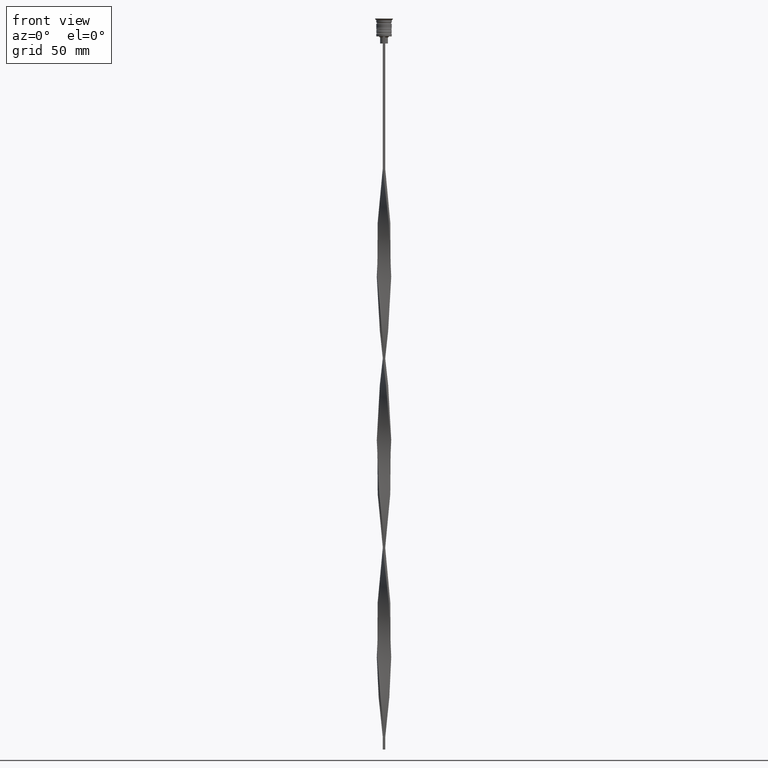
[diagram: clean part render]
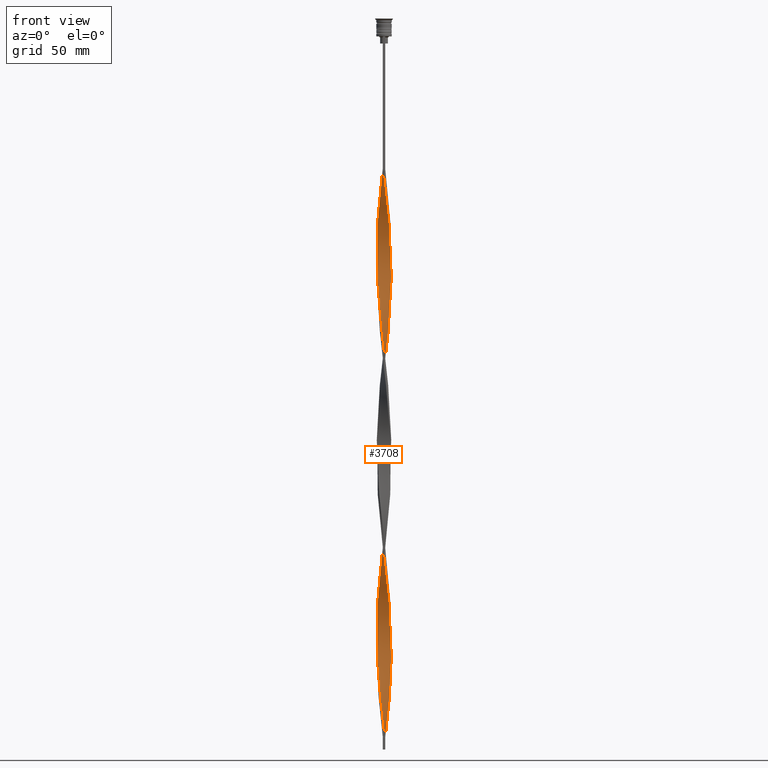
[diagram: same view with one face highlighted and labeled with its STEP entity id]
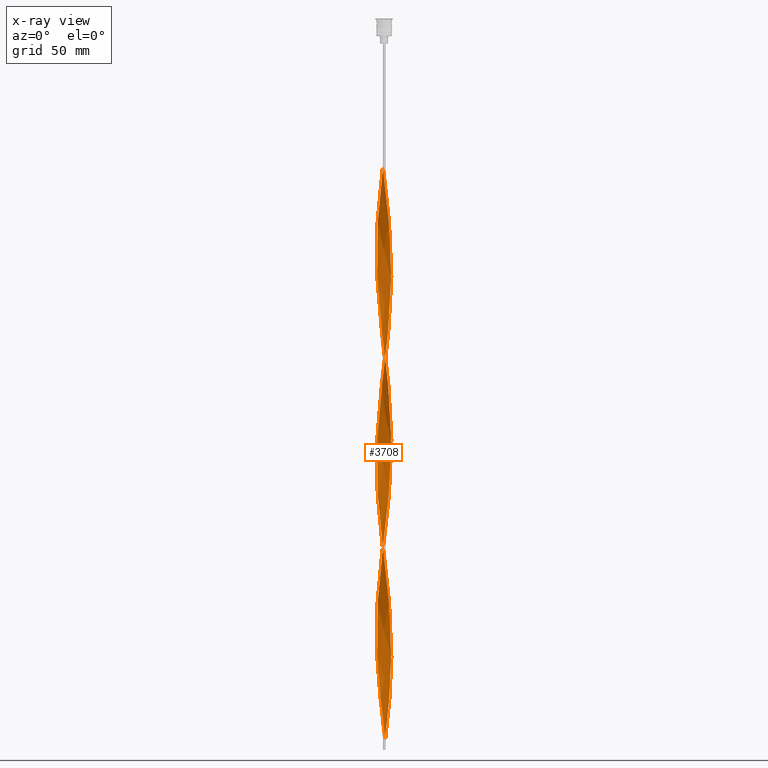
[diagram: x-ray of the same camera — body ghosted, the highlighted face saturated]
A machine part, front view. The second image highlights one B-rep face of the part: STEP entity #3708.
The next image is the same camera in x-ray: the body ghosted, the highlighted face saturated — about 0% of this face is hidden behind the body in this view.
In plain terms, the highlighted face is a freeform B-spline surface patch.
Its self-contained STEP definition (entity closure, byte-faithful):
#2 = CARTESIAN_POINT ( 'NONE',  ( -3.039350853412309039, -0.2638948795261445990, -260.5874999999999773 ) ) ;
#3 = LINE ( 'NONE', #3842, #2967 ) ;
#11 = CARTESIAN_POINT ( 'NONE',  ( -2.698661051697986757, 1.402579241272419619, -174.7666666666666515 ) ) ;
#12 = CARTESIAN_POINT ( 'NONE',  ( -2.303772973937591395, -1.999981050443478514, -116.8875000000000028 ) ) ;
#18 = CARTESIAN_POINT ( 'NONE',  ( -2.698661051697987201, -1.402579241272419175, -270.5666666666666060 ) ) ;
#23 = CARTESIAN_POINT ( 'NONE',  ( -0.6882321207821383569, 2.972142436947121880, -152.8125000000000000 ) ) ;
#30 = CARTESIAN_POINT ( 'NONE',  ( -2.809046431942904931, -1.190190010362667472, -108.9041666666666828 ) ) ;
#33 = CARTESIAN_POINT ( 'NONE',  ( 2.884847789265297724, -0.9631475654182618529, -258.5916666666666401 ) ) ;
#41 = CARTESIAN_POINT ( 'NONE',  ( 3.043213655198747869, 0.2148133291723917371, -108.9041666666666828 ) ) ;
#50 = CARTESIAN_POINT ( 'NONE',  ( -0.9164682371244557979, 2.900014822434877182, -154.8083333333333371 ) ) ;
#51 = CARTESIAN_POINT ( 'NONE',  ( -3.041282254305528454, -0.02454077517687622625, -98.92499999999998295 ) ) ;
#65 = CARTESIAN_POINT ( 'NONE',  ( 2.720943609271079033, 1.358847259689945242, -118.8833333333333258 ) ) ;
#72 = CARTESIAN_POINT ( 'NONE',  ( 0.7361051204738551235, -2.960649146587690961, -144.8291666666666515 ) ) ;
#84 = CARTESIAN_POINT ( 'NONE',  ( 3.039350853412309039, -0.2638948795261449320, -264.5791666666666515 ) ) ;
#88 = CARTESIAN_POINT ( 'NONE',  ( 3.007678046072934652, 0.4515227249772650886, -270.5666666666666060 ) ) ;
#90 = CARTESIAN_POINT ( 'NONE',  ( -1.402579241272419175, 2.698661051697986757, -230.6499999999999773 ) ) ;
#99 = CARTESIAN_POINT ( 'NONE',  ( 1.962543740019620397, -2.335747457686308870, -84.95416666666666572 ) ) ;
#100 = CARTESIAN_POINT ( 'NONE',  ( 0.5000000000000004441, 3.000000000000000000, -302.5000000000000000 ) ) ;
#101 = CARTESIAN_POINT ( 'NONE',  ( -2.167864254064893359, 2.133158356978606118, -78.96666666666665435 ) ) ;
#109 = CARTESIAN_POINT ( 'NONE',  ( -3.000000000000000000, 0.5000000000000006661, -182.7499999999999716 ) ) ;
#110 = CARTESIAN_POINT ( 'NONE',  ( 0.2148133291723913485, 3.043213655198747869, -216.6791666666666742 ) ) ;
#127 = CARTESIAN_POINT ( 'NONE',  ( 1.190190010362667916, 2.809046431942904931, -296.5125000000000455 ) ) ;
#133 = CARTESIAN_POINT ( 'NONE',  ( -1.614968472182172432, -2.588275671453068139, -212.6875000000000000 ) ) ;
#134 = CARTESIAN_POINT ( 'NONE',  ( -1.999981050443478514, 2.303772973937591395, -236.6374999999999886 ) ) ;
#137 = CARTESIAN_POINT ( 'NONE',  ( 2.960649146587690961, -0.7361051204738556786, -260.5874999999999773 ) ) ;
#142 = CARTESIAN_POINT ( 'NONE',  ( -0.02454077517687638932, -3.041282254305528454, -66.99166666666667425 ) ) ;
#146 = CARTESIAN_POINT ( 'NONE',  ( 2.900014822434877182, 0.9164682371244560199, -274.5583333333332803 ) ) ;
#155 = CARTESIAN_POINT ( 'NONE',  ( -1.767766952966369098, -2.474873734152916338, -282.5416666666666288 ) ) ;
#166 = CARTESIAN_POINT ( 'NONE',  ( -0.7361051204738575660, -2.960649146587690073, -220.6708333333333485 ) ) ;
#173 = CARTESIAN_POINT ( 'NONE',  ( -0.6882321207821390230, -2.972142436947121436, -292.5208333333333144 ) ) ;
#190 = CARTESIAN_POINT ( 'NONE',  ( 2.960649146587690517, 0.7361051204738562337, -184.7458333333333371 ) ) ;
#213 = CARTESIAN_POINT ( 'NONE',  ( 2.972142436947120547, -0.6882321207821405773, -172.7708333333333144 ) ) ;
#233 = CARTESIAN_POINT ( 'NONE',  ( -0.6882321207821390230, -2.972142436947121436, -132.8541666666666572 ) ) ;
#245 = CARTESIAN_POINT ( 'NONE',  ( 2.446024322695329989, -1.807474761312824363, -90.94166666666667709 ) ) ;
#250 = CARTESIAN_POINT ( 'NONE',  ( 2.827887207922633372, -1.144704353466772906, -168.7791666666666401 ) ) ;
#265 = CARTESIAN_POINT ( 'NONE',  ( 2.960649146587690517, -0.7361051204738555676, -100.9208333333333343 ) ) ;
#273 = CARTESIAN_POINT ( 'NONE',  ( -3.041282254305528454, -0.02454077517687622625, -98.92499999999998295 ) ) ;
#274 = CARTESIAN_POINT ( 'NONE',  ( -0.5000000000000001110, -3.000000000000000000, -63.00000000000000000 ) ) ;
#285 = CARTESIAN_POINT ( 'NONE',  ( 2.720943609271079033, 1.358847259689945242, -278.5499999999999545 ) ) ;
#288 = CARTESIAN_POINT ( 'NONE',  ( -0.9164682371244565751, -2.900014822434876738, -290.5249999999999204 ) ) ;
#297 = CARTESIAN_POINT ( 'NONE',  ( -2.446024322695329989, 1.807474761312824807, -170.7749999999999773 ) ) ;
#305 = CARTESIAN_POINT ( 'NONE',  ( -2.884847789265297724, -0.9631475654182615198, -266.5749999999999318 ) ) ;
#319 = CARTESIAN_POINT ( 'NONE',  ( -1.144704353466774016, -2.827887207922633372, -128.8624999999999829 ) ) ;
#330 = CARTESIAN_POINT ( 'NONE',  ( 3.041282254305528454, -0.02454077517687655238, -106.9083333333333314 ) ) ;
#337 = CARTESIAN_POINT ( 'NONE',  ( -1.358847259689946130, -2.720943609271079033, -126.8666666666666600 ) ) ;
#343 = CARTESIAN_POINT ( 'NONE',  ( -1.807474761312824363, 2.446024322695330433, -234.6416666666666515 ) ) ;
#348 = CARTESIAN_POINT ( 'NONE',  ( 1.807474761312824807, 2.446024322695329989, -130.8583333333333201 ) ) ;
#355 = CARTESIAN_POINT ( 'NONE',  ( 1.402579241272418953, -2.698661051697987201, -150.8166666666666629 ) ) ;
#364 = CARTESIAN_POINT ( 'NONE',  ( 0.6882321207821388009, -2.972142436947121436, -72.97916666666667140 ) ) ;
#368 = CARTESIAN_POINT ( 'NONE',  ( -2.474873734152917226, -1.767766952966368210, -202.7083333333332860 ) ) ;
#376 = CARTESIAN_POINT ( 'NONE',  ( -0.2148133291723924865, -3.043213655198747869, -136.8458333333333314 ) ) ;
#389 = CARTESIAN_POINT ( 'NONE',  ( 2.303772973937591395, -1.999981050443478958, -248.6124999999999829 ) ) ;
#397 = CARTESIAN_POINT ( 'NONE',  ( 2.827887207922633372, -1.144704353466773128, -168.7791666666666401 ) ) ;
#406 = CARTESIAN_POINT ( 'NONE',  ( 2.446024322695329989, -1.807474761312824363, -250.6083333333333201 ) ) ;
#425 = CARTESIAN_POINT ( 'NONE',  ( 1.767766952966369098, -2.474873734152916782, -242.6249999999999716 ) ) ;
#431 = CARTESIAN_POINT ( 'NONE',  ( -0.9631475654182616308, 2.884847789265297724, -226.6583333333333030 ) ) ;
#436 = CARTESIAN_POINT ( 'NONE',  ( 2.900014822434877182, 0.9164682371244560199, -114.8916666666666515 ) ) ;
#451 = CARTESIAN_POINT ( 'NONE',  ( 1.962543740019620175, -2.335747457686308870, -244.6208333333333371 ) ) ;
#459 = CARTESIAN_POINT ( 'NONE',  ( -0.02454077517687638932, -3.041282254305528454, -226.6583333333333030 ) ) ;
#460 = CARTESIAN_POINT ( 'NONE',  ( 2.446024322695330877, 1.807474761312824141, -194.7249999999999943 ) ) ;
#473 = CARTESIAN_POINT ( 'NONE',  ( 0.4515227249772652551, -3.007678046072934208, -230.6499999999999773 ) ) ;
#479 = CARTESIAN_POINT ( 'NONE',  ( 0.2638948795261443769, -3.039350853412309483, -300.5041666666666629 ) ) ;
#489 = CARTESIAN_POINT ( 'NONE',  ( -0.2148133291723924587, -3.043213655198747869, -136.8458333333333314 ) ) ;
#496 = CARTESIAN_POINT ( 'NONE',  ( 0.02454077517687595564, -3.041282254305528010, -298.5083333333332689 ) ) ;
#504 = CARTESIAN_POINT ( 'NONE',  ( -0.2638948795261447655, -3.039350853412309039, -64.99583333333333712 ) ) ;
#508 = CARTESIAN_POINT ( 'NONE',  ( 0.9164682371244567971, 2.900014822434876738, -210.6916666666666345 ) ) ;
#509 = ORIENTED_EDGE ( 'NONE', *, *, #1978, .F. ) ;
#527 = CARTESIAN_POINT ( 'NONE',  ( -2.133158356978606118, -2.167864254064892915, -118.8833333333333258 ) ) ;
#543 = CARTESIAN_POINT ( 'NONE',  ( -2.588275671453069027, -1.614968472182170878, -112.8958333333333570 ) ) ;
#550 = CARTESIAN_POINT ( 'NONE',  ( 2.335747457686308870, 1.962543740019620175, -124.8708333333333371 ) ) ;
#556 = CARTESIAN_POINT ( 'NONE',  ( 3.000000000000000000, -0.5000000000000003331, -102.9166666666666572 ) ) ;
#564 = CARTESIAN_POINT ( 'NONE',  ( -2.960649146587690517, -0.7361051204738552345, -104.9125000000000227 ) ) ;
#573 = CARTESIAN_POINT ( 'NONE',  ( 0.2148133291723920424, -3.043213655198747869, -68.98749999999999716 ) ) ;
#576 = CARTESIAN_POINT ( 'NONE',  ( 1.767766952966369098, -2.474873734152916782, -82.95833333333332860 ) ) ;
#584 = CARTESIAN_POINT ( 'NONE',  ( -0.2148133291723924587, -3.043213655198747869, -296.5125000000000455 ) ) ;
#585 = CARTESIAN_POINT ( 'NONE',  ( 0.5000000000000004441, 3.000000000000000000, -302.5000000000000000 ) ) ;
#609 = CARTESIAN_POINT ( 'NONE',  ( -2.827887207922633372, 1.144704353466774016, -88.94583333333332575 ) ) ;
#614 = CARTESIAN_POINT ( 'NONE',  ( -3.043213655198747869, 0.2148133291723922367, -256.5958333333332462 ) ) ;
#628 = CARTESIAN_POINT ( 'NONE',  ( -0.6882321207821383569, 2.972142436947121880, -152.8125000000000000 ) ) ;
#629 = CARTESIAN_POINT ( 'NONE',  ( -3.000000000000000000, -0.4999999999999998890, -102.9166666666666572 ) ) ;
#633 = CARTESIAN_POINT ( 'NONE',  ( 2.474873734152916782, 1.767766952966368654, -282.5416666666666288 ) ) ;
#640 = CARTESIAN_POINT ( 'NONE',  ( 0.5000000000000000000, -1.000000000000000000, -302.5000000000000000 ) ) ;
#642 = CARTESIAN_POINT ( 'NONE',  ( 2.614000010619525138, 1.572990165913117577, -120.8791666666666629 ) ) ;
#648 = CARTESIAN_POINT ( 'NONE',  ( -2.884847789265297724, -0.9631475654182615198, -106.9083333333333314 ) ) ;
#655 = CARTESIAN_POINT ( 'NONE',  ( -2.900014822434876738, 0.9164682371244563530, -250.6083333333333201 ) ) ;
#657 = CARTESIAN_POINT ( 'NONE',  ( -0.5000000000000001110, -3.000000000000000000, -63.00000000000000000 ) ) ;
#660 = CARTESIAN_POINT ( 'NONE',  ( 0.5000000000000004441, 3.000000000000000000, -142.8333333333333144 ) ) ;
#665 = CARTESIAN_POINT ( 'NONE',  ( 1.999981050443478070, -2.303772973937591395, -156.8041666666666458 ) ) ;
#676 = CARTESIAN_POINT ( 'NONE',  ( 2.698661051697986757, -1.402579241272419397, -94.93333333333332291 ) ) ;
#684 = CARTESIAN_POINT ( 'NONE',  ( -2.474873734152917226, -1.767766952966368210, -202.7083333333332860 ) ) ;
#685 = CARTESIAN_POINT ( 'NONE',  ( -0.4515227249772655882, -3.007678046072934208, -134.8499999999999659 ) ) ;
#698 = CARTESIAN_POINT ( 'NONE',  ( 3.000000000000000000, -0.5000000000000003331, -262.5833333333332575 ) ) ;
#706 = CARTESIAN_POINT ( 'NONE',  ( -2.446024322695330433, -1.807474761312824363, -274.5583333333332803 ) ) ;
#715 = CARTESIAN_POINT ( 'NONE',  ( -0.02454077517687638932, -3.041282254305528454, -226.6583333333333030 ) ) ;
#721 = CARTESIAN_POINT ( 'NONE',  ( -2.167864254064893803, -2.133158356978605230, -206.6999999999999602 ) ) ;
#733 = CARTESIAN_POINT ( 'NONE',  ( 0.9631475654182618529, 2.884847789265297280, -298.5083333333332689 ) ) ;
#740 = CARTESIAN_POINT ( 'NONE',  ( -3.041282254305528454, 0.02454077517687698606, -186.7416666666666458 ) ) ;
#741 = CARTESIAN_POINT ( 'NONE',  ( -2.167864254064893359, 2.133158356978606118, -238.6333333333332973 ) ) ;
#759 = CARTESIAN_POINT ( 'NONE',  ( -1.999981050443478070, -2.303772973937591839, -208.6958333333333258 ) ) ;
#767 = CARTESIAN_POINT ( 'NONE',  ( -2.588275671453069027, -1.614968472182170878, -272.5624999999999432 ) ) ;
#780 = CARTESIAN_POINT ( 'NONE',  ( -0.2638948795261447655, -3.039350853412309039, -224.6624999999999943 ) ) ;
#785 = CARTESIAN_POINT ( 'NONE',  ( -2.809046431942904931, -1.190190010362667472, -268.5708333333333258 ) ) ;
#788 = CARTESIAN_POINT ( 'NONE',  ( 3.041282254305528454, -0.02454077517687655238, -266.5749999999999318 ) ) ;
#795 = CARTESIAN_POINT ( 'NONE',  ( 2.588275671453069027, -1.614968472182171100, -92.93750000000000000 ) ) ;
#796 = FACE_OUTER_BOUND ( 'NONE', #824, .T. ) ;
#798 = CARTESIAN_POINT ( 'NONE',  ( 1.767766952966369542, 2.474873734152915894, -202.7083333333332860 ) ) ;
#812 = CARTESIAN_POINT ( 'NONE',  ( 1.402579241272419397, 2.698661051697986757, -134.8499999999999659 ) ) ;
#823 = CARTESIAN_POINT ( 'NONE',  ( 1.358847259689946352, 2.720943609271079033, -206.6999999999999602 ) ) ;
#824 = EDGE_LOOP ( 'NONE', ( #3043, #2303, #509, #1422 ) ) ;
#835 = CARTESIAN_POINT ( 'NONE',  ( -0.7361051204738554565, 2.960649146587690961, -64.99583333333333712 ) ) ;
#838 = CARTESIAN_POINT ( 'NONE',  ( 2.133158356978606118, -2.167864254064893359, -86.95000000000000284 ) ) ;
#841 = CARTESIAN_POINT ( 'NONE',  ( 1.807474761312824141, -2.446024322695330433, -154.8083333333333371 ) ) ;
#849 = CARTESIAN_POINT ( 'NONE',  ( 2.303772973937591395, -1.999981050443478958, -88.94583333333332575 ) ) ;
#858 = CARTESIAN_POINT ( 'NONE',  ( 2.809046431942905375, 1.190190010362665918, -188.7374999999999545 ) ) ;
#860 = CARTESIAN_POINT ( 'NONE',  ( 2.303772973937590951, -1.999981050443478958, -248.6124999999999829 ) ) ;
#866 = CARTESIAN_POINT ( 'NONE',  ( -2.720943609271079477, -1.358847259689944798, -198.7166666666666401 ) ) ;
#877 = CARTESIAN_POINT ( 'NONE',  ( 1.999981050443478070, -2.303772973937591839, -156.8041666666666458 ) ) ;
#891 = CARTESIAN_POINT ( 'NONE',  ( 2.167864254064893359, 2.133158356978605230, -286.5333333333333030 ) ) ;
#900 = VERTEX_POINT ( 'NONE', #585 ) ;
#901 = VERTEX_POINT ( 'NONE', #274 ) ;
#904 = CARTESIAN_POINT ( 'NONE',  ( 3.041282254305528010, 0.02454077517687579257, -178.7583333333332973 ) ) ;
#911 = CARTESIAN_POINT ( 'NONE',  ( -1.572990165913118021, -2.614000010619525138, -284.5375000000000796 ) ) ;
#923 = CARTESIAN_POINT ( 'NONE',  ( 2.588275671453068583, 1.614968472182171766, -192.7291666666666572 ) ) ;
#934 = CARTESIAN_POINT ( 'NONE',  ( -2.884847789265297280, 0.9631475654182620749, -178.7583333333332973 ) ) ;
#945 = CARTESIAN_POINT ( 'NONE',  ( -2.720943609271079033, 1.358847259689945686, -86.95000000000000284 ) ) ;
#947 = EDGE_CURVE ( 'NONE', #901, #900, #1632, .T. ) ;
#952 = CARTESIAN_POINT ( 'NONE',  ( -0.9631475654182616308, 2.884847789265297724, -226.6583333333333030 ) ) ;
#957 = CARTESIAN_POINT ( 'NONE',  ( 1.999981050443478958, 2.303772973937591395, -128.8624999999999829 ) ) ;
#962 = CARTESIAN_POINT ( 'NONE',  ( 0.2638948795261443769, -3.039350853412309483, -140.8375000000000057 ) ) ;
#973 =( BOUNDED_SURFACE ( )  B_SPLINE_SURFACE ( 1, 2, ( 
 ( #3145, #504, #142, #2513, #2211, #3394, #2822, #2436, #3219, #2128, #576, #1824, #1759, #849, #3001, #3584, #676, #3608, #1549, #265, #2940, #3497, #330, #41, #3799, #2636, #1215, #3626, #65, #642, #2417, #550, #2709, #957, #348, #1448, #1142, #2109, #1737, #974, #660, #1255, #1838, #2395, #2026, #23, #2730, #1527, #2145, #2309, #3198, #3318, #1158, #2920, #1510, #3515, #3301, #2693, #934, #3818, #3283, #2326, #1426, #1232, #3036, #3018, #1857, #2614, #866, #2041, #368, #2237, #3423, #759, #1891, #1349, #2801, #2535, #1936, #166, #3355, #780, #715, #3070, #473, #3727, #1069, #1956, #3666, #1027, #425, #451, #1620, #389, #406, #1567, #2748, #2180, #2198, #1011, #698, #84, #1643, #1272, #3109, #2164, #146, #1595, #1288, #2214, #2515, #3644, #2457, #2824, #3374, #3398, #2782, #127, #733, #989, #1312 ),
 ( #3340, #1876, #3053, #1580, #3701, #1328, #2761, #2497, #101, #2479, #1908, #3682, #3087, #1046, #1690, #3128, #1130, #2642, #273, #1730, #1438, #564, #3488, #3787, #2336, #543, #2892, #2624, #527, #1395, #2299, #2871, #1713, #3826, #2933, #233, #3746, #489, #2018, #2256, #3524, #3190, #1104, #3766, #2909, #1165, #841, #877, #1417, #2600, #1751, #3172, #1662, #250, #3807, #213, #1149, #2845, #3506, #2582, #2318, #190, #1376, #858, #2035, #3208, #1455, #2562, #1086, #3442, #798, #1974, #823, #3149, #508, #2274, #3465, #2001, #2411, #3604, #2086, #2997, #952, #2124, #1766, #3297, #343, #2104, #2056, #2676, #3012, #3245, #1211, #1802, #655, #2360, #2960, #614, #3548, #2, #2392, #1180, #305, #1488, #18, #1227, #2689, #3279, #2945, #3229, #1541, #911, #1506, #1834, #288, #1198, #3563, #584, #2374, #1469, #3258 ) ),
 .UNSPECIFIED., .F., .F., .F. ) 
 B_SPLINE_SURFACE_WITH_KNOTS ( ( 2, 2 ),
 ( 3, 2, 2, 2, 2, 2, 2, 2, 2, 2, 2, 2, 2, 2, 2, 2, 2, 2, 2, 2, 2, 2, 2, 2, 2, 2, 2, 2, 2, 2, 2, 2, 2, 2, 2, 2, 2, 2, 2, 2, 2, 2, 2, 2, 2, 2, 2, 2, 2, 2, 2, 2, 2, 2, 2, 2, 2, 2, 2, 2, 3 ),
 ( 0.000000000000000000, 1.000000000000000000 ),
 ( 0.000000000000000000, 0.01250000000000000069, 0.02500000000000000139, 0.03749999999999999861, 0.05000000000000000278, 0.06250000000000000000, 0.07499999999999999722, 0.08749999999999999445, 0.1000000000000000056, 0.1125000000000000028, 0.1250000000000000000, 0.1375000000000000111, 0.1499999999999999944, 0.1625000000000000056, 0.1749999999999999889, 0.1875000000000000000, 0.2000000000000000111, 0.2124999999999999944, 0.2250000000000000056, 0.2374999999999999889, 0.2500000000000000000, 0.2625000000000000111, 0.2750000000000000222, 0.2874999999999999778, 0.2999999999999999889, 0.3125000000000000000, 0.3250000000000000111, 0.3375000000000000222, 0.3499999999999999778, 0.3624999999999999889, 0.3750000000000000000, 0.3875000000000000111, 0.4000000000000000222, 0.4124999999999999778, 0.4249999999999999889, 0.4375000000000000000, 0.4500000000000000111, 0.4625000000000000222, 0.4749999999999999778, 0.4874999999999999889, 0.5000000000000000000, 0.5124999999999999556, 0.5250000000000000222, 0.5374999999999999778, 0.5500000000000000444, 0.5625000000000000000, 0.5749999999999999556, 0.5875000000000000222, 0.5999999999999999778, 0.6125000000000000444, 0.6250000000000000000, 0.6374999999999999556, 0.6500000000000000222, 0.6624999999999999778, 0.6750000000000000444, 0.6875000000000000000, 0.6999999999999999556, 0.7125000000000000222, 0.7249999999999999778, 0.7375000000000000444, 0.7500000000000000000 ),
 .UNSPECIFIED. ) 
 GEOMETRIC_REPRESENTATION_ITEM ( )  RATIONAL_B_SPLINE_SURFACE ( (
 ( 1.000000000000000000, 0.9969173337331279638, 1.000000000000000000, 0.9969173337331279638, 1.000000000000000000, 0.9969173337331279638, 1.000000000000000000, 0.9969173337331279638, 1.000000000000000000, 0.9969173337331279638, 1.000000000000000000, 0.9969173337331279638, 1.000000000000000000, 0.9969173337331279638, 1.000000000000000000, 0.9969173337331279638, 1.000000000000000000, 0.9969173337331279638, 1.000000000000000000, 0.9969173337331279638, 1.000000000000000000, 0.9969173337331279638, 1.000000000000000000, 0.9969173337331279638, 1.000000000000000000, 0.9969173337331279638, 1.000000000000000000, 0.9969173337331279638, 1.000000000000000000, 0.9969173337331279638, 1.000000000000000000, 0.9969173337331279638, 1.000000000000000000, 0.9969173337331279638, 1.000000000000000000, 0.9969173337331279638, 1.000000000000000000, 0.9969173337331279638, 1.000000000000000000, 0.9969173337331279638, 1.000000000000000000, 0.9969173337331279638, 1.000000000000000000, 0.9969173337331279638, 1.000000000000000000, 0.9969173337331279638, 1.000000000000000000, 0.9969173337331279638, 1.000000000000000000, 0.9969173337331279638, 1.000000000000000000, 0.9969173337331279638, 1.000000000000000000, 0.9969173337331279638, 1.000000000000000000, 0.9969173337331279638, 1.000000000000000000, 0.9969173337331279638, 1.000000000000000000, 0.9969173337331279638, 1.000000000000000000, 0.9969173337331279638, 1.000000000000000000, 0.9969173337331279638, 1.000000000000000000, 0.9969173337331279638, 1.000000000000000000, 0.9969173337331279638, 1.000000000000000000, 0.9969173337331279638, 1.000000000000000000, 0.9969173337331279638, 1.000000000000000000, 0.9969173337331279638, 1.000000000000000000, 0.9969173337331279638, 1.000000000000000000, 0.9969173337331279638, 1.000000000000000000, 0.9969173337331279638, 1.000000000000000000, 0.9969173337331279638, 1.000000000000000000, 0.9969173337331279638, 1.000000000000000000, 0.9969173337331279638, 1.000000000000000000, 0.9969173337331279638, 1.000000000000000000, 0.9969173337331279638, 1.000000000000000000, 0.9969173337331279638, 1.000000000000000000, 0.9969173337331279638, 1.000000000000000000, 0.9969173337331279638, 1.000000000000000000, 0.9969173337331279638, 1.000000000000000000, 0.9969173337331279638, 1.000000000000000000, 0.9969173337331279638, 1.000000000000000000, 0.9969173337331279638, 1.000000000000000000, 0.9969173337331279638, 1.000000000000000000, 0.9969173337331279638, 1.000000000000000000, 0.9969173337331279638, 1.000000000000000000, 0.9969173337331279638, 1.000000000000000000, 0.9969173337331279638, 1.000000000000000000, 0.9969173337331279638, 1.000000000000000000, 0.9969173337331279638, 1.000000000000000000, 0.9969173337331279638, 1.000000000000000000),
 ( 1.000000000000000000, 0.9969173337331279638, 1.000000000000000000, 0.9969173337331279638, 1.000000000000000000, 0.9969173337331279638, 1.000000000000000000, 0.9969173337331279638, 1.000000000000000000, 0.9969173337331279638, 1.000000000000000000, 0.9969173337331279638, 1.000000000000000000, 0.9969173337331279638, 1.000000000000000000, 0.9969173337331279638, 1.000000000000000000, 0.9969173337331279638, 1.000000000000000000, 0.9969173337331279638, 1.000000000000000000, 0.9969173337331279638, 1.000000000000000000, 0.9969173337331279638, 1.000000000000000000, 0.9969173337331279638, 1.000000000000000000, 0.9969173337331279638, 1.000000000000000000, 0.9969173337331279638, 1.000000000000000000, 0.9969173337331279638, 1.000000000000000000, 0.9969173337331279638, 1.000000000000000000, 0.9969173337331279638, 1.000000000000000000, 0.9969173337331279638, 1.000000000000000000, 0.9969173337331279638, 1.000000000000000000, 0.9969173337331279638, 1.000000000000000000, 0.9969173337331279638, 1.000000000000000000, 0.9969173337331279638, 1.000000000000000000, 0.9969173337331279638, 1.000000000000000000, 0.9969173337331279638, 1.000000000000000000, 0.9969173337331279638, 1.000000000000000000, 0.9969173337331279638, 1.000000000000000000, 0.9969173337331279638, 1.000000000000000000, 0.9969173337331279638, 1.000000000000000000, 0.9969173337331279638, 1.000000000000000000, 0.9969173337331279638, 1.000000000000000000, 0.9969173337331279638, 1.000000000000000000, 0.9969173337331279638, 1.000000000000000000, 0.9969173337331279638, 1.000000000000000000, 0.9969173337331279638, 1.000000000000000000, 0.9969173337331279638, 1.000000000000000000, 0.9969173337331279638, 1.000000000000000000, 0.9969173337331279638, 1.000000000000000000, 0.9969173337331279638, 1.000000000000000000, 0.9969173337331279638, 1.000000000000000000, 0.9969173337331279638, 1.000000000000000000, 0.9969173337331279638, 1.000000000000000000, 0.9969173337331279638, 1.000000000000000000, 0.9969173337331279638, 1.000000000000000000, 0.9969173337331279638, 1.000000000000000000, 0.9969173337331279638, 1.000000000000000000, 0.9969173337331279638, 1.000000000000000000, 0.9969173337331279638, 1.000000000000000000, 0.9969173337331279638, 1.000000000000000000, 0.9969173337331279638, 1.000000000000000000, 0.9969173337331279638, 1.000000000000000000, 0.9969173337331279638, 1.000000000000000000, 0.9969173337331279638, 1.000000000000000000, 0.9969173337331279638, 1.000000000000000000, 0.9969173337331279638, 1.000000000000000000, 0.9969173337331279638, 1.000000000000000000, 0.9969173337331279638, 1.000000000000000000, 0.9969173337331279638, 1.000000000000000000, 0.9969173337331279638, 1.000000000000000000, 0.9969173337331279638, 1.000000000000000000) ) ) 
 REPRESENTATION_ITEM ( '' )  SURFACE ( )  );
#974 = CARTESIAN_POINT ( 'NONE',  ( 0.7361051204738557896, 2.960649146587690517, -140.8375000000000057 ) ) ;
#979 = CARTESIAN_POINT ( 'NONE',  ( -2.446024322695330433, -1.807474761312824363, -114.8916666666666515 ) ) ;
#989 = CARTESIAN_POINT ( 'NONE',  ( 0.7361051204738557896, 2.960649146587690517, -300.5041666666666629 ) ) ;
#995 = CARTESIAN_POINT ( 'NONE',  ( 2.827887207922633817, 1.144704353466773794, -276.5541666666666742 ) ) ;
#999 = CARTESIAN_POINT ( 'NONE',  ( -1.807474761312824807, -2.446024322695329989, -210.6916666666666345 ) ) ;
#1000 = CARTESIAN_POINT ( 'NONE',  ( 1.144704353466773350, 2.827887207922633817, -208.6958333333333258 ) ) ;
#1011 = CARTESIAN_POINT ( 'NONE',  ( 2.960649146587690517, -0.7361051204738555676, -260.5874999999999773 ) ) ;
#1018 = CARTESIAN_POINT ( 'NONE',  ( -2.335747457686308870, 1.962543740019620397, -240.6291666666666629 ) ) ;
#1027 = CARTESIAN_POINT ( 'NONE',  ( 1.572990165913118021, -2.614000010619525138, -240.6291666666666913 ) ) ;
#1034 = CARTESIAN_POINT ( 'NONE',  ( -0.7361051204738575660, -2.960649146587690517, -220.6708333333333485 ) ) ;
#1035 = CARTESIAN_POINT ( 'NONE',  ( 2.303772973937592283, 1.999981050443477626, -196.7208333333333030 ) ) ;
#1044 = CARTESIAN_POINT ( 'NONE',  ( 1.767766952966369098, -2.474873734152916782, -82.95833333333332860 ) ) ;
#1046 = CARTESIAN_POINT ( 'NONE',  ( -2.827887207922633372, 1.144704353466773794, -88.94583333333332575 ) ) ;
#1052 = CARTESIAN_POINT ( 'NONE',  ( 1.962543740019620397, 2.335747457686309314, -200.7124999999999773 ) ) ;
#1069 = CARTESIAN_POINT ( 'NONE',  ( 0.9164682371244560199, -2.900014822434877182, -234.6416666666666515 ) ) ;
#1075 = CARTESIAN_POINT ( 'NONE',  ( -0.2638948795261426561, 3.039350853412309483, -220.6708333333333485 ) ) ;
#1086 = CARTESIAN_POINT ( 'NONE',  ( 2.133158356978606562, 2.167864254064892471, -198.7166666666666401 ) ) ;
#1104 = CARTESIAN_POINT ( 'NONE',  ( 0.9631475654182611867, -2.884847789265297724, -146.8249999999999886 ) ) ;
#1117 = CARTESIAN_POINT ( 'NONE',  ( 0.2638948795261451541, 3.039350853412309483, -144.8291666666666515 ) ) ;
#1130 = CARTESIAN_POINT ( 'NONE',  ( -3.007678046072934208, 0.4515227249772654772, -94.93333333333332291 ) ) ;
#1142 = CARTESIAN_POINT ( 'NONE',  ( 1.402579241272419397, 2.698661051697986757, -134.8499999999999659 ) ) ;
#1149 = CARTESIAN_POINT ( 'NONE',  ( 3.007678046072934208, -0.4515227249772658102, -174.7666666666666515 ) ) ;
#1158 = CARTESIAN_POINT ( 'NONE',  ( -2.133158356978605230, 2.167864254064893359, -166.7833333333333030 ) ) ;
#1165 = CARTESIAN_POINT ( 'NONE',  ( 1.614968472182170656, -2.588275671453069471, -152.8125000000000000 ) ) ;
#1180 = CARTESIAN_POINT ( 'NONE',  ( -2.960649146587690517, -0.7361051204738552345, -264.5791666666666515 ) ) ;
#1188 = VERTEX_POINT ( 'NONE', #3522 ) ;
#1192 = CARTESIAN_POINT ( 'NONE',  ( -2.588275671453068139, 1.614968472182172210, -172.7708333333333144 ) ) ;
#1193 = CARTESIAN_POINT ( 'NONE',  ( -2.900014822434876738, 0.9164682371244563530, -90.94166666666667709 ) ) ;
#1198 = CARTESIAN_POINT ( 'NONE',  ( -0.6882321207821390230, -2.972142436947121436, -292.5208333333333712 ) ) ;
#1207 = CARTESIAN_POINT ( 'NONE',  ( 2.698661051697987201, 1.402579241272418731, -190.7333333333333201 ) ) ;
#1211 = CARTESIAN_POINT ( 'NONE',  ( -2.720943609271079033, 1.358847259689945686, -246.6166666666666174 ) ) ;
#1215 = CARTESIAN_POINT ( 'NONE',  ( 2.900014822434877182, 0.9164682371244560199, -114.8916666666666515 ) ) ;
#1222 = CARTESIAN_POINT ( 'NONE',  ( -1.614968472182171100, 2.588275671453069027, -72.97916666666667140 ) ) ;
#1227 = CARTESIAN_POINT ( 'NONE',  ( -2.588275671453069027, -1.614968472182170878, -272.5624999999998863 ) ) ;
#1232 = CARTESIAN_POINT ( 'NONE',  ( -3.043213655198748313, -0.2148133291723901273, -188.7374999999999545 ) ) ;
#1244 = CARTESIAN_POINT ( 'NONE',  ( -1.358847259689945242, 2.720943609271079033, -158.7999999999999829 ) ) ;
#1245 = CARTESIAN_POINT ( 'NONE',  ( -0.9631475654182616308, 2.884847789265297724, -66.99166666666667425 ) ) ;
#1253 = CARTESIAN_POINT ( 'NONE',  ( 0.4999999999999997780, -3.000000000000000000, -302.5000000000000000 ) ) ;
#1255 = CARTESIAN_POINT ( 'NONE',  ( 0.2638948795261451541, 3.039350853412309039, -144.8291666666666515 ) ) ;
#1260 = CARTESIAN_POINT ( 'NONE',  ( -2.884847789265297280, 0.9631475654182620749, -178.7583333333332973 ) ) ;
#1261 = CARTESIAN_POINT ( 'NONE',  ( -0.6882321207821390230, -2.972142436947121436, -132.8541666666666572 ) ) ;
#1269 = CARTESIAN_POINT ( 'NONE',  ( -0.2638948795261447655, -3.039350853412309483, -64.99583333333333712 ) ) ;
#1272 = CARTESIAN_POINT ( 'NONE',  ( 3.043213655198747869, 0.2148133291723917371, -268.5708333333332689 ) ) ;
#1277 = CARTESIAN_POINT ( 'NONE',  ( 0.4515227249772661433, 3.007678046072934208, -214.6833333333333087 ) ) ;
#1288 = CARTESIAN_POINT ( 'NONE',  ( 2.720943609271079033, 1.358847259689945242, -278.5499999999999545 ) ) ;
#1297 = CARTESIAN_POINT ( 'NONE',  ( -3.043213655198748313, -0.2148133291723901273, -188.7374999999999829 ) ) ;
#1298 = CARTESIAN_POINT ( 'NONE',  ( -2.133158356978606118, -2.167864254064892915, -278.5499999999999545 ) ) ;
#1312 = CARTESIAN_POINT ( 'NONE',  ( 0.5000000000000004441, 3.000000000000000000, -302.5000000000000000 ) ) ;
#1319 = CARTESIAN_POINT ( 'NONE',  ( -2.720943609271079033, 1.358847259689945686, -246.6166666666666174 ) ) ;
#1328 = CARTESIAN_POINT ( 'NONE',  ( -1.614968472182171100, 2.588275671453069027, -72.97916666666665719 ) ) ;
#1337 = CARTESIAN_POINT ( 'NONE',  ( -1.402579241272419841, -2.698661051697986757, -214.6833333333333087 ) ) ;
#1338 = CARTESIAN_POINT ( 'NONE',  ( 0.6882321207821407993, 2.972142436947120547, -212.6875000000000000 ) ) ;
#1341 = CARTESIAN_POINT ( 'NONE',  ( 2.827887207922633817, 1.144704353466773794, -116.8875000000000028 ) ) ;
#1349 = CARTESIAN_POINT ( 'NONE',  ( -1.614968472182172654, -2.588275671453068139, -212.6875000000000284 ) ) ;
#1357 = CARTESIAN_POINT ( 'NONE',  ( -0.5000000000000001110, 3.000000000000000000, -222.6666666666666288 ) ) ;
#1369 = CARTESIAN_POINT ( 'NONE',  ( 1.190190010362667916, 2.809046431942904931, -296.5124999999999886 ) ) ;
#1376 = CARTESIAN_POINT ( 'NONE',  ( 2.884847789265297724, 0.9631475654182610757, -186.7416666666666458 ) ) ;
#1387 = CARTESIAN_POINT ( 'NONE',  ( 1.807474761312824807, 2.446024322695329989, -130.8583333333333201 ) ) ;
#1395 = CARTESIAN_POINT ( 'NONE',  ( -1.962543740019620175, -2.335747457686308426, -120.8791666666666629 ) ) ;
#1400 = CARTESIAN_POINT ( 'NONE',  ( 1.144704353466773794, -2.827887207922633817, -236.6374999999999886 ) ) ;
#1406 = CARTESIAN_POINT ( 'NONE',  ( 0.7361051204738559006, 2.960649146587690961, -140.8375000000000057 ) ) ;
#1417 = CARTESIAN_POINT ( 'NONE',  ( 2.167864254064892915, -2.133158356978606118, -158.7999999999999829 ) ) ;
#1422 = ORIENTED_EDGE ( 'NONE', *, *, #947, .F. ) ;
#1426 = CARTESIAN_POINT ( 'NONE',  ( -3.041282254305528454, 0.02454077517687698606, -186.7416666666666458 ) ) ;
#1427 = CARTESIAN_POINT ( 'NONE',  ( 1.614968472182171322, 2.588275671453069027, -132.8541666666666572 ) ) ;
#1433 = CARTESIAN_POINT ( 'NONE',  ( 2.698661051697986757, -1.402579241272419397, -94.93333333333332291 ) ) ;
#1438 = CARTESIAN_POINT ( 'NONE',  ( -3.000000000000000000, -0.4999999999999998890, -102.9166666666666572 ) ) ;
#1442 = CARTESIAN_POINT ( 'NONE',  ( 0.9164682371244560199, -2.900014822434877182, -234.6416666666666515 ) ) ;
#1448 = CARTESIAN_POINT ( 'NONE',  ( 1.614968472182171322, 2.588275671453069027, -132.8541666666666572 ) ) ;
#1455 = CARTESIAN_POINT ( 'NONE',  ( 2.446024322695330877, 1.807474761312824141, -194.7249999999999943 ) ) ;
#1469 = CARTESIAN_POINT ( 'NONE',  ( 0.2638948795261443769, -3.039350853412309039, -300.5041666666666629 ) ) ;
#1488 = CARTESIAN_POINT ( 'NONE',  ( -2.809046431942904931, -1.190190010362667694, -268.5708333333332689 ) ) ;
#1499 = CARTESIAN_POINT ( 'NONE',  ( 2.960649146587690961, 0.7361051204738562337, -184.7458333333333371 ) ) ;
#1506 = CARTESIAN_POINT ( 'NONE',  ( -1.358847259689946130, -2.720943609271079033, -286.5333333333333030 ) ) ;
#1509 = CARTESIAN_POINT ( 'NONE',  ( 2.446024322695329989, -1.807474761312824363, -250.6083333333333201 ) ) ;
#1510 = CARTESIAN_POINT ( 'NONE',  ( -2.446024322695329989, 1.807474761312824807, -170.7749999999999773 ) ) ;
#1515 = CARTESIAN_POINT ( 'NONE',  ( 2.167864254064892915, -2.133158356978606118, -158.7999999999999829 ) ) ;
#1527 = CARTESIAN_POINT ( 'NONE',  ( -1.144704353466773128, 2.827887207922633817, -156.8041666666666458 ) ) ;
#1533 = CARTESIAN_POINT ( 'NONE',  ( 1.614968472182170656, -2.588275671453069471, -152.8125000000000000 ) ) ;
#1541 = CARTESIAN_POINT ( 'NONE',  ( -1.767766952966369098, -2.474873734152916338, -282.5416666666666288 ) ) ;
#1544 = CARTESIAN_POINT ( 'NONE',  ( 1.358847259689945686, -2.720943609271079033, -78.96666666666665435 ) ) ;
#1549 = CARTESIAN_POINT ( 'NONE',  ( 2.884847789265297724, -0.9631475654182618529, -98.92499999999998295 ) ) ;
#1558 = CARTESIAN_POINT ( 'NONE',  ( 2.900014822434876738, -0.9164682371244567971, -170.7749999999999773 ) ) ;
#1567 = CARTESIAN_POINT ( 'NONE',  ( 2.588275671453069027, -1.614968472182171100, -252.6041666666666003 ) ) ;
#1572 = CARTESIAN_POINT ( 'NONE',  ( -0.9164682371244565751, -2.900014822434876738, -130.8583333333333201 ) ) ;
#1580 = CARTESIAN_POINT ( 'NONE',  ( -1.190190010362667694, 2.809046431942904931, -68.98749999999999716 ) ) ;
#1586 = CARTESIAN_POINT ( 'NONE',  ( 1.572990165913119354, 2.614000010619523806, -204.7041666666666515 ) ) ;
#1595 = CARTESIAN_POINT ( 'NONE',  ( 2.827887207922633817, 1.144704353466773572, -276.5541666666666174 ) ) ;
#1604 = CARTESIAN_POINT ( 'NONE',  ( -2.960649146587690517, 0.7361051204738573439, -180.7541666666666629 ) ) ;
#1605 = CARTESIAN_POINT ( 'NONE',  ( -1.190190010362667472, 2.809046431942904931, -228.6541666666666686 ) ) ;
#1620 = CARTESIAN_POINT ( 'NONE',  ( 2.133158356978606118, -2.167864254064893359, -246.6166666666666174 ) ) ;
#1628 = CARTESIAN_POINT ( 'NONE',  ( -2.960649146587690961, -0.7361051204738553455, -264.5791666666666515 ) ) ;
#1632 =( BOUNDED_CURVE ( )  B_SPLINE_CURVE ( 2, ( #657, #1269, #1851, #573, #1773, #364, #2159, #1835, #1544, #2433, #1044, #99, #838, #3438, #245, #795, #1433, #2033, #3205, #1971, #556, #3144, #1746, #2930, #2333, #3521, #436, #1341, #3656, #1947, #2742, #3635, #2882, #2245, #1387, #1427, #812, #1704, #3199, #1406, #3776, #1117, #3481, #2921, #3820, #628, #50, #1777, #1244, #2345, #2968, #3614, #3855, #2066, #297, #1192, #11, #3691, #1260, #1604, #109, #3381, #740, #1297, #2810, #3095, #2188, #2442, #3323, #3362, #684, #2522, #721, #2463, #999, #133, #1337, #2504, #3710, #1034, #1918, #3044, #459, #3155, #2606, #3492, #1442, #1400, #2628, #2338, #3526, #3810, #3509, #860, #1509, #1786, #2387, #2701, #33, #137, #2192, #3737, #788, #1966, #88, #3225, #2388, #995, #285, #2352, #633, #3541, #891, #1682, #3677, #2865, #2249, #1369, #1636, #3720, #3759 ),
 .UNSPECIFIED., .F., .T. ) 
 B_SPLINE_CURVE_WITH_KNOTS ( ( 3, 2, 2, 2, 2, 2, 2, 2, 2, 2, 2, 2, 2, 2, 2, 2, 2, 2, 2, 2, 2, 2, 2, 2, 2, 2, 2, 2, 2, 2, 2, 2, 2, 2, 2, 2, 2, 2, 2, 2, 2, 2, 2, 2, 2, 2, 2, 2, 2, 2, 2, 2, 2, 2, 2, 2, 2, 2, 2, 2, 3 ),
 ( 0.000000000000000000, 0.01250000000000000243, 0.02500000000000000486, 0.03749999999999999861, 0.05000000000000000971, 0.06250000000000000000, 0.07499999999999999722, 0.08749999999999998057, 0.1000000000000000194, 0.1125000000000000028, 0.1250000000000000000, 0.1375000000000000111, 0.1499999999999999944, 0.1625000000000000056, 0.1749999999999999611, 0.1875000000000000000, 0.2000000000000000389, 0.2124999999999999944, 0.2250000000000000056, 0.2374999999999999611, 0.2500000000000000000, 0.2625000000000000111, 0.2750000000000000222, 0.2874999999999999778, 0.2999999999999999889, 0.3125000000000000000, 0.3250000000000000111, 0.3375000000000000777, 0.3499999999999999223, 0.3624999999999999889, 0.3750000000000000000, 0.3875000000000000111, 0.4000000000000000777, 0.4124999999999999223, 0.4249999999999999889, 0.4375000000000000000, 0.4500000000000000111, 0.4625000000000000777, 0.4749999999999999223, 0.4874999999999999889, 0.5000000000000000000, 0.5124999999999999556, 0.5250000000000000222, 0.5374999999999999778, 0.5500000000000000444, 0.5625000000000000000, 0.5749999999999999556, 0.5875000000000000222, 0.5999999999999999778, 0.6125000000000000444, 0.6250000000000000000, 0.6374999999999999556, 0.6500000000000000222, 0.6624999999999999778, 0.6750000000000001554, 0.6875000000000000000, 0.6999999999999998446, 0.7125000000000000222, 0.7249999999999999778, 0.7375000000000001554, 0.7500000000000000000 ),
 .UNSPECIFIED. ) 
 CURVE ( )  GEOMETRIC_REPRESENTATION_ITEM ( )  RATIONAL_B_SPLINE_CURVE ( ( 1.000000000000000000, 0.9969173337331279638, 1.000000000000000000, 0.9969173337331279638, 1.000000000000000000, 0.9969173337331279638, 1.000000000000000000, 0.9969173337331279638, 1.000000000000000000, 0.9969173337331279638, 1.000000000000000000, 0.9969173337331279638, 1.000000000000000000, 0.9969173337331279638, 1.000000000000000000, 0.9969173337331279638, 1.000000000000000000, 0.9969173337331279638, 1.000000000000000000, 0.9969173337331279638, 1.000000000000000000, 0.9969173337331279638, 1.000000000000000000, 0.9969173337331279638, 1.000000000000000000, 0.9969173337331279638, 1.000000000000000000, 0.9969173337331279638, 1.000000000000000000, 0.9969173337331279638, 1.000000000000000000, 0.9969173337331279638, 1.000000000000000000, 0.9969173337331279638, 1.000000000000000000, 0.9969173337331279638, 1.000000000000000000, 0.9969173337331279638, 1.000000000000000000, 0.9969173337331279638, 1.000000000000000000, 0.9969173337331279638, 1.000000000000000000, 0.9969173337331279638, 1.000000000000000000, 0.9969173337331279638, 1.000000000000000000, 0.9969173337331279638, 1.000000000000000000, 0.9969173337331279638, 1.000000000000000000, 0.9969173337331279638, 1.000000000000000000, 0.9969173337331279638, 1.000000000000000000, 0.9969173337331279638, 1.000000000000000000, 0.9969173337331279638, 1.000000000000000000, 0.9969173337331279638, 1.000000000000000000, 0.9969173337331279638, 1.000000000000000000, 0.9969173337331279638, 1.000000000000000000, 0.9969173337331279638, 1.000000000000000000, 0.9969173337331279638, 1.000000000000000000, 0.9969173337331279638, 1.000000000000000000, 0.9969173337331279638, 1.000000000000000000, 0.9969173337331279638, 1.000000000000000000, 0.9969173337331279638, 1.000000000000000000, 0.9969173337331279638, 1.000000000000000000, 0.9969173337331279638, 1.000000000000000000, 0.9969173337331279638, 1.000000000000000000, 0.9969173337331279638, 1.000000000000000000, 0.9969173337331279638, 1.000000000000000000, 0.9969173337331279638, 1.000000000000000000, 0.9969173337331279638, 1.000000000000000000, 0.9969173337331279638, 1.000000000000000000, 0.9969173337331279638, 1.000000000000000000, 0.9969173337331279638, 1.000000000000000000, 0.9969173337331279638, 1.000000000000000000, 0.9969173337331279638, 1.000000000000000000, 0.9969173337331279638, 1.000000000000000000, 0.9969173337331279638, 1.000000000000000000, 0.9969173337331279638, 1.000000000000000000, 0.9969173337331279638, 1.000000000000000000, 0.9969173337331279638, 1.000000000000000000, 0.9969173337331279638, 1.000000000000000000, 0.9969173337331279638, 1.000000000000000000, 0.9969173337331279638, 1.000000000000000000, 0.9969173337331279638, 1.000000000000000000, 0.9969173337331279638, 1.000000000000000000 ) ) 
 REPRESENTATION_ITEM ( '' )  );
#1636 = CARTESIAN_POINT ( 'NONE',  ( 0.9631475654182618529, 2.884847789265297280, -298.5083333333332689 ) ) ;
#1642 = EDGE_CURVE ( 'NONE', #3476, #1188, #3854, .T. ) ;
#1643 = CARTESIAN_POINT ( 'NONE',  ( 3.041282254305528454, -0.02454077517687655238, -266.5749999999999318 ) ) ;
#1652 = CARTESIAN_POINT ( 'NONE',  ( -3.041282254305528454, -0.02454077517687622625, -258.5916666666666401 ) ) ;
#1662 = CARTESIAN_POINT ( 'NONE',  ( 2.720943609271079033, -1.358847259689946130, -166.7833333333333030 ) ) ;
#1682 = CARTESIAN_POINT ( 'NONE',  ( 1.999981050443478958, 2.303772973937590951, -288.5291666666666970 ) ) ;
#1690 = CARTESIAN_POINT ( 'NONE',  ( -2.900014822434876738, 0.9164682371244563530, -90.94166666666667709 ) ) ;
#1704 = CARTESIAN_POINT ( 'NONE',  ( 1.190190010362667916, 2.809046431942904931, -136.8458333333333314 ) ) ;
#1713 = CARTESIAN_POINT ( 'NONE',  ( -1.358847259689946130, -2.720943609271079033, -126.8666666666666600 ) ) ;
#1729 = EDGE_CURVE ( 'NONE', #901, #3476, #3, .T. ) ;
#1730 = CARTESIAN_POINT ( 'NONE',  ( -3.039350853412309039, -0.2638948795261445990, -100.9208333333333343 ) ) ;
#1737 = CARTESIAN_POINT ( 'NONE',  ( 0.9631475654182618529, 2.884847789265297280, -138.8416666666666401 ) ) ;
#1746 = CARTESIAN_POINT ( 'NONE',  ( 3.041282254305528454, -0.02454077517687655238, -106.9083333333333314 ) ) ;
#1751 = CARTESIAN_POINT ( 'NONE',  ( 2.474873734152916338, -1.767766952966369542, -162.7916666666666572 ) ) ;
#1759 = CARTESIAN_POINT ( 'NONE',  ( 2.133158356978606118, -2.167864254064893359, -86.95000000000000284 ) ) ;
#1766 = CARTESIAN_POINT ( 'NONE',  ( -1.402579241272419175, 2.698661051697986757, -230.6499999999999773 ) ) ;
#1773 = CARTESIAN_POINT ( 'NONE',  ( 0.4515227249772652551, -3.007678046072934208, -70.98333333333333428 ) ) ;
#1777 = CARTESIAN_POINT ( 'NONE',  ( -1.144704353466773350, 2.827887207922633817, -156.8041666666666458 ) ) ;
#1786 = CARTESIAN_POINT ( 'NONE',  ( 2.588275671453069027, -1.614968472182171100, -252.6041666666666288 ) ) ;
#1793 = CARTESIAN_POINT ( 'NONE',  ( 0.02454077517687595564, -3.041282254305528010, -138.8416666666666401 ) ) ;
#1802 = CARTESIAN_POINT ( 'NONE',  ( -2.827887207922633372, 1.144704353466773794, -248.6124999999999829 ) ) ;
#1812 = CARTESIAN_POINT ( 'NONE',  ( -3.039350853412309483, -0.2638948795261445990, -100.9208333333333343 ) ) ;
#1824 = CARTESIAN_POINT ( 'NONE',  ( 1.962543740019620175, -2.335747457686308870, -84.95416666666666572 ) ) ;
#1829 = CARTESIAN_POINT ( 'NONE',  ( -1.999981050443478514, 2.303772973937591395, -76.97083333333333144 ) ) ;
#1834 = CARTESIAN_POINT ( 'NONE',  ( -1.144704353466773794, -2.827887207922633372, -288.5291666666666970 ) ) ;
#1835 = CARTESIAN_POINT ( 'NONE',  ( 1.144704353466773794, -2.827887207922633817, -76.97083333333333144 ) ) ;
#1838 = CARTESIAN_POINT ( 'NONE',  ( 0.02454077517687682300, 3.041282254305528454, -146.8249999999999886 ) ) ;
#1843 = CARTESIAN_POINT ( 'NONE',  ( 2.335747457686308426, -1.962543740019620842, -160.7958333333332916 ) ) ;
#1851 = CARTESIAN_POINT ( 'NONE',  ( -0.02454077517687638932, -3.041282254305528454, -66.99166666666667425 ) ) ;
#1857 = CARTESIAN_POINT ( 'NONE',  ( -2.900014822434877626, -0.9164682371244557979, -194.7249999999999943 ) ) ;
#1867 = CARTESIAN_POINT ( 'NONE',  ( 2.614000010619524250, -1.572990165913119132, -164.7874999999999659 ) ) ;
#1874 = CARTESIAN_POINT ( 'NONE',  ( 0.5000000000000002220, 1.000000000000000000, -302.5000000000000000 ) ) ;
#1876 = CARTESIAN_POINT ( 'NONE',  ( -0.7361051204738553455, 2.960649146587690517, -64.99583333333333712 ) ) ;
#1883 = CARTESIAN_POINT ( 'NONE',  ( -2.303772973937591395, -1.999981050443478514, -276.5541666666666742 ) ) ;
#1891 = CARTESIAN_POINT ( 'NONE',  ( -1.807474761312824807, -2.446024322695329989, -210.6916666666666345 ) ) ;
#1896 = CARTESIAN_POINT ( 'NONE',  ( 1.358847259689946352, 2.720943609271079033, -206.6999999999999602 ) ) ;
#1908 = CARTESIAN_POINT ( 'NONE',  ( -2.474873734152916782, 1.767766952966369098, -82.95833333333332860 ) ) ;
#1918 = CARTESIAN_POINT ( 'NONE',  ( -0.5000000000000001110, -3.000000000000000000, -222.6666666666666288 ) ) ;
#1919 = CARTESIAN_POINT ( 'NONE',  ( -3.007678046072934208, 0.4515227249772654772, -254.5999999999999375 ) ) ;
#1936 = CARTESIAN_POINT ( 'NONE',  ( -0.9631475654182622970, -2.884847789265297280, -218.6749999999999829 ) ) ;
#1944 = CARTESIAN_POINT ( 'NONE',  ( -0.2148133291723924865, -3.043213655198747869, -296.5124999999999886 ) ) ;
#1947 = CARTESIAN_POINT ( 'NONE',  ( 2.614000010619525138, 1.572990165913117577, -120.8791666666666629 ) ) ;
#1956 = CARTESIAN_POINT ( 'NONE',  ( 1.144704353466773572, -2.827887207922633817, -236.6374999999999886 ) ) ;
#1963 = CARTESIAN_POINT ( 'NONE',  ( 2.133158356978606562, 2.167864254064892471, -198.7166666666666401 ) ) ;
#1966 = CARTESIAN_POINT ( 'NONE',  ( 3.043213655198747869, 0.2148133291723917371, -268.5708333333333258 ) ) ;
#1971 = CARTESIAN_POINT ( 'NONE',  ( 2.960649146587690961, -0.7361051204738556786, -100.9208333333333343 ) ) ;
#1974 = CARTESIAN_POINT ( 'NONE',  ( 1.572990165913119576, 2.614000010619524250, -204.7041666666666799 ) ) ;
#1978 = EDGE_CURVE ( 'NONE', #900, #1188, #3549, .T. ) ;
#2001 = CARTESIAN_POINT ( 'NONE',  ( 0.2148133291723913763, 3.043213655198747869, -216.6791666666666742 ) ) ;
#2018 = CARTESIAN_POINT ( 'NONE',  ( 0.02454077517687595564, -3.041282254305528010, -138.8416666666666401 ) ) ;
#2026 = CARTESIAN_POINT ( 'NONE',  ( -0.4515227249772649221, 3.007678046072934652, -150.8166666666666629 ) ) ;
#2033 = CARTESIAN_POINT ( 'NONE',  ( 2.809046431942904931, -1.190190010362667916, -96.92916666666667425 ) ) ;
#2035 = CARTESIAN_POINT ( 'NONE',  ( 2.698661051697987201, 1.402579241272418731, -190.7333333333333201 ) ) ;
#2041 = CARTESIAN_POINT ( 'NONE',  ( -2.614000010619524250, -1.572990165913118465, -200.7124999999999773 ) ) ;
#2043 = CARTESIAN_POINT ( 'NONE',  ( -0.5000000000000001110, 3.000000000000000000, -63.00000000000000000 ) ) ;
#2056 = CARTESIAN_POINT ( 'NONE',  ( -2.167864254064893359, 2.133158356978606118, -238.6333333333332973 ) ) ;
#2066 = CARTESIAN_POINT ( 'NONE',  ( -2.303772973937591839, 1.999981050443478070, -168.7791666666666401 ) ) ;
#2081 = CARTESIAN_POINT ( 'NONE',  ( 3.039350853412309483, 0.2638948795261428781, -180.7541666666666629 ) ) ;
#2086 = CARTESIAN_POINT ( 'NONE',  ( -0.5000000000000001110, 3.000000000000000000, -222.6666666666666288 ) ) ;
#2096 = CARTESIAN_POINT ( 'NONE',  ( -1.807474761312824363, 2.446024322695330433, -74.97499999999999432 ) ) ;
#2104 = CARTESIAN_POINT ( 'NONE',  ( -1.999981050443478514, 2.303772973937591839, -236.6374999999999886 ) ) ;
#2109 = CARTESIAN_POINT ( 'NONE',  ( 1.190190010362667916, 2.809046431942904931, -136.8458333333333314 ) ) ;
#2117 = CARTESIAN_POINT ( 'NONE',  ( 0.4999999999999997780, -3.000000000000000000, -142.8333333333333144 ) ) ;
#2124 = CARTESIAN_POINT ( 'NONE',  ( -1.190190010362667694, 2.809046431942904931, -228.6541666666666686 ) ) ;
#2128 = CARTESIAN_POINT ( 'NONE',  ( 1.572990165913118021, -2.614000010619525138, -80.96249999999997726 ) ) ;
#2134 = CARTESIAN_POINT ( 'NONE',  ( -1.402579241272419175, 2.698661051697986757, -70.98333333333333428 ) ) ;
#2145 = CARTESIAN_POINT ( 'NONE',  ( -1.358847259689945242, 2.720943609271079033, -158.7999999999999829 ) ) ;
#2150 = CARTESIAN_POINT ( 'NONE',  ( -2.133158356978606118, -2.167864254064892915, -118.8833333333333258 ) ) ;
#2159 = CARTESIAN_POINT ( 'NONE',  ( 0.9164682371244560199, -2.900014822434877182, -74.97499999999999432 ) ) ;
#2164 = CARTESIAN_POINT ( 'NONE',  ( 2.972142436947121436, 0.6882321207821385789, -272.5624999999998863 ) ) ;
#2173 = CARTESIAN_POINT ( 'NONE',  ( -0.7361051204738554565, 2.960649146587690961, -224.6624999999999943 ) ) ;
#2180 = CARTESIAN_POINT ( 'NONE',  ( 2.809046431942904931, -1.190190010362667916, -256.5958333333332462 ) ) ;
#2188 = CARTESIAN_POINT ( 'NONE',  ( -2.900014822434877626, -0.9164682371244557979, -194.7249999999999943 ) ) ;
#2192 = CARTESIAN_POINT ( 'NONE',  ( 3.000000000000000000, -0.5000000000000003331, -262.5833333333332575 ) ) ;
#2198 = CARTESIAN_POINT ( 'NONE',  ( 2.884847789265297724, -0.9631475654182618529, -258.5916666666666401 ) ) ;
#2204 = CARTESIAN_POINT ( 'NONE',  ( -3.043213655198747869, 0.2148133291723922644, -256.5958333333333030 ) ) ;
#2211 = CARTESIAN_POINT ( 'NONE',  ( 0.4515227249772652551, -3.007678046072934208, -70.98333333333333428 ) ) ;
#2214 = CARTESIAN_POINT ( 'NONE',  ( 2.614000010619525138, 1.572990165913117577, -280.5458333333333485 ) ) ;
#2224 = CARTESIAN_POINT ( 'NONE',  ( -3.039350853412309483, -0.2638948795261445990, -260.5874999999999773 ) ) ;
#2237 = CARTESIAN_POINT ( 'NONE',  ( -2.335747457686310202, -1.962543740019619509, -204.7041666666666799 ) ) ;
#2242 = CARTESIAN_POINT ( 'NONE',  ( -1.572990165913117799, -2.614000010619525138, -284.5375000000000796 ) ) ;
#2245 = CARTESIAN_POINT ( 'NONE',  ( 1.999981050443478958, 2.303772973937590951, -128.8624999999999829 ) ) ;
#2249 = CARTESIAN_POINT ( 'NONE',  ( 1.402579241272419397, 2.698661051697986757, -294.5166666666666515 ) ) ;
#2256 = CARTESIAN_POINT ( 'NONE',  ( 0.2638948795261443769, -3.039350853412309039, -140.8375000000000057 ) ) ;
#2274 = CARTESIAN_POINT ( 'NONE',  ( 0.6882321207821407993, 2.972142436947120547, -212.6875000000000284 ) ) ;
#2299 = CARTESIAN_POINT ( 'NONE',  ( -1.767766952966369098, -2.474873734152916338, -122.8749999999999858 ) ) ;
#2303 = ORIENTED_EDGE ( 'NONE', *, *, #1642, .T. ) ;
#2309 = CARTESIAN_POINT ( 'NONE',  ( -1.572990165913117355, 2.614000010619525582, -160.7958333333332916 ) ) ;
#2318 = CARTESIAN_POINT ( 'NONE',  ( 3.000000000000000000, 0.4999999999999995559, -182.7499999999999716 ) ) ;
#2326 = CARTESIAN_POINT ( 'NONE',  ( -3.039350853412309039, 0.2638948795261439328, -184.7458333333333371 ) ) ;
#2333 = CARTESIAN_POINT ( 'NONE',  ( 3.007678046072934652, 0.4515227249772650886, -110.9000000000000057 ) ) ;
#2336 = CARTESIAN_POINT ( 'NONE',  ( -2.698661051697987201, -1.402579241272419175, -110.9000000000000057 ) ) ;
#2338 = CARTESIAN_POINT ( 'NONE',  ( 1.572990165913117799, -2.614000010619525138, -240.6291666666666629 ) ) ;
#2345 = CARTESIAN_POINT ( 'NONE',  ( -1.572990165913117355, 2.614000010619525582, -160.7958333333332916 ) ) ;
#2352 = CARTESIAN_POINT ( 'NONE',  ( 2.614000010619525138, 1.572990165913117577, -280.5458333333333485 ) ) ;
#2360 = CARTESIAN_POINT ( 'NONE',  ( -2.972142436947121436, 0.6882321207821388009, -252.6041666666666003 ) ) ;
#2368 = CARTESIAN_POINT ( 'NONE',  ( -1.962543740019620397, -2.335747457686308426, -120.8791666666666629 ) ) ;
#2374 = CARTESIAN_POINT ( 'NONE',  ( 0.02454077517687595564, -3.041282254305528010, -298.5083333333332689 ) ) ;
#2379 = CARTESIAN_POINT ( 'NONE',  ( -0.5000000000000001110, 3.000000000000000000, -63.00000000000000000 ) ) ;
#2384 = CARTESIAN_POINT ( 'NONE',  ( 2.720943609271079033, -1.358847259689946130, -166.7833333333333030 ) ) ;
#2387 = CARTESIAN_POINT ( 'NONE',  ( 2.698661051697986757, -1.402579241272419397, -254.5999999999999375 ) ) ;
#2388 = CARTESIAN_POINT ( 'NONE',  ( 2.900014822434877182, 0.9164682371244560199, -274.5583333333332803 ) ) ;
#2392 = CARTESIAN_POINT ( 'NONE',  ( -3.000000000000000000, -0.4999999999999998890, -262.5833333333332575 ) ) ;
#2395 = CARTESIAN_POINT ( 'NONE',  ( -0.2148133291723916816, 3.043213655198747869, -148.8208333333332973 ) ) ;
#2402 = CARTESIAN_POINT ( 'NONE',  ( -2.335747457686308870, 1.962543740019620397, -80.96249999999999147 ) ) ;
#2411 = CARTESIAN_POINT ( 'NONE',  ( -0.02454077517687562951, 3.041282254305528010, -218.6749999999999829 ) ) ;
#2417 = CARTESIAN_POINT ( 'NONE',  ( 2.474873734152916782, 1.767766952966368654, -122.8749999999999858 ) ) ;
#2425 = CARTESIAN_POINT ( 'NONE',  ( -2.698661051697987201, -1.402579241272419175, -110.9000000000000057 ) ) ;
#2433 = CARTESIAN_POINT ( 'NONE',  ( 1.572990165913117799, -2.614000010619525138, -80.96249999999999147 ) ) ;
#2436 = CARTESIAN_POINT ( 'NONE',  ( 1.144704353466773572, -2.827887207922633817, -76.97083333333333144 ) ) ;
#2442 = CARTESIAN_POINT ( 'NONE',  ( -2.827887207922633817, -1.144704353466772462, -196.7208333333333030 ) ) ;
#2443 = CARTESIAN_POINT ( 'NONE',  ( 0.9631475654182611867, -2.884847789265297724, -146.8249999999999886 ) ) ;
#2457 = CARTESIAN_POINT ( 'NONE',  ( 2.167864254064893359, 2.133158356978605230, -286.5333333333333030 ) ) ;
#2463 = CARTESIAN_POINT ( 'NONE',  ( -1.999981050443478070, -2.303772973937591395, -208.6958333333333258 ) ) ;
#2464 = CARTESIAN_POINT ( 'NONE',  ( -1.962543740019620397, -2.335747457686308426, -280.5458333333333485 ) ) ;
#2479 = CARTESIAN_POINT ( 'NONE',  ( -2.335747457686308870, 1.962543740019620175, -80.96249999999997726 ) ) ;
#2497 = CARTESIAN_POINT ( 'NONE',  ( -1.999981050443478514, 2.303772973937591839, -76.97083333333333144 ) ) ;
#2504 = CARTESIAN_POINT ( 'NONE',  ( -1.190190010362667250, -2.809046431942904931, -216.6791666666666742 ) ) ;
#2505 = CARTESIAN_POINT ( 'NONE',  ( -0.02454077517687562951, 3.041282254305528010, -218.6749999999999829 ) ) ;
#2513 = CARTESIAN_POINT ( 'NONE',  ( 0.2148133291723920146, -3.043213655198747869, -68.98749999999999716 ) ) ;
#2515 = CARTESIAN_POINT ( 'NONE',  ( 2.474873734152916782, 1.767766952966368654, -282.5416666666666288 ) ) ;
#2522 = CARTESIAN_POINT ( 'NONE',  ( -2.335747457686310202, -1.962543740019619065, -204.7041666666666515 ) ) ;
#2523 = CARTESIAN_POINT ( 'NONE',  ( -1.144704353466774016, -2.827887207922633372, -288.5291666666666970 ) ) ;
#2535 = CARTESIAN_POINT ( 'NONE',  ( -1.190190010362667250, -2.809046431942904931, -216.6791666666666742 ) ) ;
#2545 = CARTESIAN_POINT ( 'NONE',  ( 0.4999999999999997780, -3.000000000000000000, -302.5000000000000000 ) ) ;
#2562 = CARTESIAN_POINT ( 'NONE',  ( 2.303772973937592727, 1.999981050443477626, -196.7208333333333314 ) ) ;
#2582 = CARTESIAN_POINT ( 'NONE',  ( 3.039350853412309483, 0.2638948795261428781, -180.7541666666666345 ) ) ;
#2600 = CARTESIAN_POINT ( 'NONE',  ( 2.335747457686308426, -1.962543740019620619, -160.7958333333332916 ) ) ;
#2606 = CARTESIAN_POINT ( 'NONE',  ( 0.4515227249772652551, -3.007678046072934208, -230.6499999999999773 ) ) ;
#2614 = CARTESIAN_POINT ( 'NONE',  ( -2.827887207922633817, -1.144704353466772240, -196.7208333333333314 ) ) ;
#2624 = CARTESIAN_POINT ( 'NONE',  ( -2.303772973937591839, -1.999981050443478514, -116.8875000000000028 ) ) ;
#2628 = CARTESIAN_POINT ( 'NONE',  ( 1.358847259689945686, -2.720943609271079033, -238.6333333333332973 ) ) ;
#2636 = CARTESIAN_POINT ( 'NONE',  ( 2.972142436947121436, 0.6882321207821385789, -112.8958333333333570 ) ) ;
#2642 = CARTESIAN_POINT ( 'NONE',  ( -3.043213655198747869, 0.2148133291723922367, -96.92916666666667425 ) ) ;
#2676 = CARTESIAN_POINT ( 'NONE',  ( -2.335747457686308870, 1.962543740019620175, -240.6291666666666913 ) ) ;
#2684 = CARTESIAN_POINT ( 'NONE',  ( 2.809046431942905375, 1.190190010362665918, -188.7374999999999829 ) ) ;
#2689 = CARTESIAN_POINT ( 'NONE',  ( -2.446024322695330433, -1.807474761312824363, -274.5583333333332803 ) ) ;
#2693 = CARTESIAN_POINT ( 'NONE',  ( -2.809046431942904931, 1.190190010362667028, -176.7624999999999886 ) ) ;
#2698 = CARTESIAN_POINT ( 'NONE',  ( 2.884847789265297724, 0.9631475654182610757, -186.7416666666666458 ) ) ;
#2701 = CARTESIAN_POINT ( 'NONE',  ( 2.809046431942904931, -1.190190010362667916, -256.5958333333333030 ) ) ;
#2709 = CARTESIAN_POINT ( 'NONE',  ( 2.167864254064893359, 2.133158356978605230, -126.8666666666666600 ) ) ;
#2715 = CARTESIAN_POINT ( 'NONE',  ( -2.972142436947121436, 0.6882321207821388009, -92.93750000000000000 ) ) ;
#2730 = CARTESIAN_POINT ( 'NONE',  ( -0.9164682371244557979, 2.900014822434877182, -154.8083333333333371 ) ) ;
#2738 = CARTESIAN_POINT ( 'NONE',  ( 2.972142436947120547, -0.6882321207821405773, -172.7708333333333144 ) ) ;
#2742 = CARTESIAN_POINT ( 'NONE',  ( 2.474873734152916782, 1.767766952966368654, -122.8749999999999858 ) ) ;
#2748 = CARTESIAN_POINT ( 'NONE',  ( 2.698661051697986757, -1.402579241272419397, -254.5999999999999375 ) ) ;
#2753 = CARTESIAN_POINT ( 'NONE',  ( -1.807474761312824363, 2.446024322695330433, -234.6416666666666515 ) ) ;
#2761 = CARTESIAN_POINT ( 'NONE',  ( -1.807474761312824363, 2.446024322695330433, -74.97499999999999432 ) ) ;
#2782 = CARTESIAN_POINT ( 'NONE',  ( 1.402579241272419397, 2.698661051697986757, -294.5166666666666515 ) ) ;
#2791 = CARTESIAN_POINT ( 'NONE',  ( -1.614968472182171100, 2.588275671453069027, -232.6458333333333428 ) ) ;
#2801 = CARTESIAN_POINT ( 'NONE',  ( -1.402579241272419841, -2.698661051697986757, -214.6833333333333087 ) ) ;
#2810 = CARTESIAN_POINT ( 'NONE',  ( -3.007678046072934652, -0.4515227249772648110, -190.7333333333333201 ) ) ;
#2811 = CARTESIAN_POINT ( 'NONE',  ( -2.900014822434876738, 0.9164682371244563530, -250.6083333333333201 ) ) ;
#2822 = CARTESIAN_POINT ( 'NONE',  ( 0.9164682371244560199, -2.900014822434877182, -74.97499999999999432 ) ) ;
#2824 = CARTESIAN_POINT ( 'NONE',  ( 1.999981050443478958, 2.303772973937591395, -288.5291666666666970 ) ) ;
#2834 = CARTESIAN_POINT ( 'NONE',  ( 1.767766952966369542, 2.474873734152915894, -202.7083333333332860 ) ) ;
#2845 = CARTESIAN_POINT ( 'NONE',  ( 3.043213655198747869, -0.2148133291723912652, -176.7624999999999886 ) ) ;
#2865 = CARTESIAN_POINT ( 'NONE',  ( 1.614968472182171322, 2.588275671453069027, -292.5208333333333144 ) ) ;
#2871 = CARTESIAN_POINT ( 'NONE',  ( -1.572990165913118021, -2.614000010619525138, -124.8708333333333371 ) ) ;
#2882 = CARTESIAN_POINT ( 'NONE',  ( 2.167864254064893359, 2.133158356978605230, -126.8666666666666600 ) ) ;
#2892 = CARTESIAN_POINT ( 'NONE',  ( -2.446024322695330433, -1.807474761312824363, -114.8916666666666515 ) ) ;
#2909 = CARTESIAN_POINT ( 'NONE',  ( 1.402579241272418953, -2.698661051697987201, -150.8166666666666629 ) ) ;
#2920 = CARTESIAN_POINT ( 'NONE',  ( -2.303772973937592283, 1.999981050443478070, -168.7791666666666401 ) ) ;
#2921 = CARTESIAN_POINT ( 'NONE',  ( -0.2148133291723916816, 3.043213655198747869, -148.8208333333333258 ) ) ;
#2930 = CARTESIAN_POINT ( 'NONE',  ( 3.043213655198747869, 0.2148133291723917371, -108.9041666666666828 ) ) ;
#2933 = CARTESIAN_POINT ( 'NONE',  ( -0.9164682371244565751, -2.900014822434876738, -130.8583333333333201 ) ) ;
#2940 = CARTESIAN_POINT ( 'NONE',  ( 3.000000000000000000, -0.5000000000000003331, -102.9166666666666572 ) ) ;
#2945 = CARTESIAN_POINT ( 'NONE',  ( -2.133158356978606118, -2.167864254064892915, -278.5499999999999545 ) ) ;
#2960 = CARTESIAN_POINT ( 'NONE',  ( -3.007678046072934208, 0.4515227249772654772, -254.5999999999999375 ) ) ;
#2967 = VECTOR ( 'NONE', #3582, 1000.000000000000000 ) ;
#2968 = CARTESIAN_POINT ( 'NONE',  ( -1.767766952966368654, 2.474873734152917226, -162.7916666666666572 ) ) ;
#2969 = CARTESIAN_POINT ( 'NONE',  ( -3.007678046072934208, 0.4515227249772654772, -94.93333333333332291 ) ) ;
#2989 = CARTESIAN_POINT ( 'NONE',  ( -1.767766952966369098, -2.474873734152916338, -122.8749999999999858 ) ) ;
#2997 = CARTESIAN_POINT ( 'NONE',  ( -0.7361051204738553455, 2.960649146587690517, -224.6624999999999943 ) ) ;
#3001 = CARTESIAN_POINT ( 'NONE',  ( 2.446024322695329989, -1.807474761312824363, -90.94166666666667709 ) ) ;
#3007 = CARTESIAN_POINT ( 'NONE',  ( -1.572990165913117799, -2.614000010619525138, -124.8708333333333371 ) ) ;
#3012 = CARTESIAN_POINT ( 'NONE',  ( -2.474873734152916782, 1.767766952966369098, -242.6249999999999716 ) ) ;
#3018 = CARTESIAN_POINT ( 'NONE',  ( -2.972142436947120991, -0.6882321207821395781, -192.7291666666666288 ) ) ;
#3023 = CARTESIAN_POINT ( 'NONE',  ( 2.474873734152916338, -1.767766952966369542, -162.7916666666666572 ) ) ;
#3036 = CARTESIAN_POINT ( 'NONE',  ( -3.007678046072934652, -0.4515227249772648110, -190.7333333333333201 ) ) ;
#3043 = ORIENTED_EDGE ( 'NONE', *, *, #1729, .T. ) ;
#3044 = CARTESIAN_POINT ( 'NONE',  ( -0.2638948795261447655, -3.039350853412309483, -224.6624999999999943 ) ) ;
#3045 = CARTESIAN_POINT ( 'NONE',  ( -3.043213655198747869, 0.2148133291723922644, -96.92916666666667425 ) ) ;
#3053 = CARTESIAN_POINT ( 'NONE',  ( -0.9631475654182616308, 2.884847789265297724, -66.99166666666667425 ) ) ;
#3060 = CARTESIAN_POINT ( 'NONE',  ( -2.614000010619525138, 1.572990165913117799, -244.6208333333333087 ) ) ;
#3070 = CARTESIAN_POINT ( 'NONE',  ( 0.2148133291723920146, -3.043213655198747869, -228.6541666666666686 ) ) ;
#3076 = CARTESIAN_POINT ( 'NONE',  ( 0.9164682371244567971, 2.900014822434876738, -210.6916666666666345 ) ) ;
#3087 = CARTESIAN_POINT ( 'NONE',  ( -2.720943609271079033, 1.358847259689945686, -86.95000000000000284 ) ) ;
#3095 = CARTESIAN_POINT ( 'NONE',  ( -2.972142436947120991, -0.6882321207821395781, -192.7291666666666572 ) ) ;
#3096 = CARTESIAN_POINT ( 'NONE',  ( -2.972142436947121436, 0.6882321207821388009, -252.6041666666666288 ) ) ;
#3109 = CARTESIAN_POINT ( 'NONE',  ( 3.007678046072934652, 0.4515227249772650886, -270.5666666666666060 ) ) ;
#3117 = CARTESIAN_POINT ( 'NONE',  ( -2.884847789265297724, -0.9631475654182615198, -266.5749999999999318 ) ) ;
#3128 = CARTESIAN_POINT ( 'NONE',  ( -2.972142436947121436, 0.6882321207821388009, -92.93750000000001421 ) ) ;
#3134 = CARTESIAN_POINT ( 'NONE',  ( -3.000000000000000000, -0.4999999999999998890, -262.5833333333332575 ) ) ;
#3144 = CARTESIAN_POINT ( 'NONE',  ( 3.039350853412309483, -0.2638948795261449320, -104.9125000000000085 ) ) ;
#3145 = CARTESIAN_POINT ( 'NONE',  ( -0.5000000000000001110, -3.000000000000000000, -63.00000000000000000 ) ) ;
#3149 = CARTESIAN_POINT ( 'NONE',  ( 1.144704353466773128, 2.827887207922633817, -208.6958333333333258 ) ) ;
#3155 = CARTESIAN_POINT ( 'NONE',  ( 0.2148133291723920424, -3.043213655198747869, -228.6541666666666686 ) ) ;
#3172 = CARTESIAN_POINT ( 'NONE',  ( 2.614000010619524250, -1.572990165913119354, -164.7874999999999659 ) ) ;
#3190 = CARTESIAN_POINT ( 'NONE',  ( 0.7361051204738550124, -2.960649146587690517, -144.8291666666666515 ) ) ;
#3198 = CARTESIAN_POINT ( 'NONE',  ( -1.767766952966368654, 2.474873734152917226, -162.7916666666666572 ) ) ;
#3199 = CARTESIAN_POINT ( 'NONE',  ( 0.9631475654182618529, 2.884847789265297280, -138.8416666666666401 ) ) ;
#3205 = CARTESIAN_POINT ( 'NONE',  ( 2.884847789265297724, -0.9631475654182618529, -98.92499999999998295 ) ) ;
#3208 = CARTESIAN_POINT ( 'NONE',  ( 2.588275671453068583, 1.614968472182171766, -192.7291666666666288 ) ) ;
#3219 = CARTESIAN_POINT ( 'NONE',  ( 1.358847259689945686, -2.720943609271079033, -78.96666666666665435 ) ) ;
#3225 = CARTESIAN_POINT ( 'NONE',  ( 2.972142436947121436, 0.6882321207821385789, -272.5624999999999432 ) ) ;
#3229 = CARTESIAN_POINT ( 'NONE',  ( -1.962543740019620175, -2.335747457686308426, -280.5458333333333485 ) ) ;
#3245 = CARTESIAN_POINT ( 'NONE',  ( -2.614000010619525138, 1.572990165913118021, -244.6208333333333371 ) ) ;
#3253 = CARTESIAN_POINT ( 'NONE',  ( 3.000000000000000000, 0.4999999999999995559, -182.7499999999999716 ) ) ;
#3258 = CARTESIAN_POINT ( 'NONE',  ( 0.4999999999999997780, -3.000000000000000000, -302.5000000000000000 ) ) ;
#3268 = CARTESIAN_POINT ( 'NONE',  ( -2.960649146587690961, -0.7361051204738553455, -104.9125000000000085 ) ) ;
#3279 = CARTESIAN_POINT ( 'NONE',  ( -2.303772973937591839, -1.999981050443478514, -276.5541666666666174 ) ) ;
#3283 = CARTESIAN_POINT ( 'NONE',  ( -3.000000000000000000, 0.5000000000000006661, -182.7499999999999716 ) ) ;
#3289 = CARTESIAN_POINT ( 'NONE',  ( 1.190190010362667472, -2.809046431942904931, -148.8208333333333258 ) ) ;
#3297 = CARTESIAN_POINT ( 'NONE',  ( -1.614968472182171100, 2.588275671453069027, -232.6458333333333428 ) ) ;
#3301 = CARTESIAN_POINT ( 'NONE',  ( -2.698661051697986757, 1.402579241272419619, -174.7666666666666515 ) ) ;
#3308 = CARTESIAN_POINT ( 'NONE',  ( 1.807474761312824141, -2.446024322695330433, -154.8083333333333371 ) ) ;
#3318 = CARTESIAN_POINT ( 'NONE',  ( -1.962543740019619731, 2.335747457686310202, -164.7874999999999659 ) ) ;
#3323 = CARTESIAN_POINT ( 'NONE',  ( -2.720943609271079477, -1.358847259689944798, -198.7166666666666401 ) ) ;
#3324 = CARTESIAN_POINT ( 'NONE',  ( -2.474873734152916782, 1.767766952966369098, -82.95833333333332860 ) ) ;
#3340 = CARTESIAN_POINT ( 'NONE',  ( -0.5000000000000001110, 3.000000000000000000, -63.00000000000000000 ) ) ;
#3346 = CARTESIAN_POINT ( 'NONE',  ( -2.474873734152916782, 1.767766952966369098, -242.6249999999999716 ) ) ;
#3355 = CARTESIAN_POINT ( 'NONE',  ( -0.5000000000000001110, -3.000000000000000000, -222.6666666666666288 ) ) ;
#3362 = CARTESIAN_POINT ( 'NONE',  ( -2.614000010619524250, -1.572990165913118243, -200.7124999999999773 ) ) ;
#3374 = CARTESIAN_POINT ( 'NONE',  ( 1.807474761312824807, 2.446024322695329989, -290.5249999999999204 ) ) ;
#3381 = CARTESIAN_POINT ( 'NONE',  ( -3.039350853412309483, 0.2638948795261439328, -184.7458333333333371 ) ) ;
#3382 = CARTESIAN_POINT ( 'NONE',  ( -2.698661051697987201, -1.402579241272419175, -270.5666666666666060 ) ) ;
#3394 = CARTESIAN_POINT ( 'NONE',  ( 0.6882321207821388009, -2.972142436947121436, -72.97916666666665719 ) ) ;
#3398 = CARTESIAN_POINT ( 'NONE',  ( 1.614968472182171322, 2.588275671453069027, -292.5208333333333712 ) ) ;
#3409 = CARTESIAN_POINT ( 'NONE',  ( -0.9164682371244565751, -2.900014822434876738, -290.5249999999999204 ) ) ;
#3423 = CARTESIAN_POINT ( 'NONE',  ( -2.167864254064893803, -2.133158356978605230, -206.6999999999999602 ) ) ;
#3438 = CARTESIAN_POINT ( 'NONE',  ( 2.303772973937590951, -1.999981050443478958, -88.94583333333332575 ) ) ;
#3442 = CARTESIAN_POINT ( 'NONE',  ( 1.962543740019620175, 2.335747457686309314, -200.7124999999999773 ) ) ;
#3465 = CARTESIAN_POINT ( 'NONE',  ( 0.4515227249772661433, 3.007678046072934208, -214.6833333333333087 ) ) ;
#3476 = VERTEX_POINT ( 'NONE', #2379 ) ;
#3481 = CARTESIAN_POINT ( 'NONE',  ( 0.02454077517687682300, 3.041282254305528454, -146.8249999999999886 ) ) ;
#3488 = CARTESIAN_POINT ( 'NONE',  ( -2.884847789265297724, -0.9631475654182615198, -106.9083333333333314 ) ) ;
#3492 = CARTESIAN_POINT ( 'NONE',  ( 0.6882321207821388009, -2.972142436947121436, -232.6458333333333428 ) ) ;
#3497 = CARTESIAN_POINT ( 'NONE',  ( 3.039350853412309039, -0.2638948795261449320, -104.9125000000000227 ) ) ;
#3506 = CARTESIAN_POINT ( 'NONE',  ( 3.041282254305528010, 0.02454077517687579257, -178.7583333333332973 ) ) ;
#3509 = CARTESIAN_POINT ( 'NONE',  ( 2.133158356978606118, -2.167864254064893359, -246.6166666666666174 ) ) ;
#3515 = CARTESIAN_POINT ( 'NONE',  ( -2.588275671453068139, 1.614968472182172432, -172.7708333333333144 ) ) ;
#3521 = CARTESIAN_POINT ( 'NONE',  ( 2.972142436947121436, 0.6882321207821385789, -112.8958333333333428 ) ) ;
#3522 = CARTESIAN_POINT ( 'NONE',  ( 0.4999999999999997780, -3.000000000000000000, -302.5000000000000000 ) ) ;
#3524 = CARTESIAN_POINT ( 'NONE',  ( 0.4999999999999997780, -3.000000000000000000, -142.8333333333333144 ) ) ;
#3526 = CARTESIAN_POINT ( 'NONE',  ( 1.767766952966369098, -2.474873734152916782, -242.6249999999999716 ) ) ;
#3541 = CARTESIAN_POINT ( 'NONE',  ( 2.335747457686308870, 1.962543740019620397, -284.5375000000000796 ) ) ;
#3548 = CARTESIAN_POINT ( 'NONE',  ( -3.041282254305528454, -0.02454077517687622625, -258.5916666666666401 ) ) ;
#3549 = B_SPLINE_CURVE_WITH_KNOTS ( 'NONE', 3,
 ( #100, #1874, #640, #1253 ),
 .UNSPECIFIED., .F., .F.,
 ( 4, 4 ),
 ( 0.000000000000000000, 1.000000000000000000 ),
 .UNSPECIFIED. ) ;
#3558 = CARTESIAN_POINT ( 'NONE',  ( 3.043213655198747869, -0.2148133291723912652, -176.7624999999999886 ) ) ;
#3563 = CARTESIAN_POINT ( 'NONE',  ( -0.4515227249772655882, -3.007678046072934208, -294.5166666666666515 ) ) ;
#3575 = CARTESIAN_POINT ( 'NONE',  ( -2.167864254064893359, 2.133158356978606118, -78.96666666666665435 ) ) ;
#3582 = DIRECTION ( 'NONE',  ( 0.000000000000000000, 1.000000000000000000, 0.000000000000000000 ) ) ;
#3584 = CARTESIAN_POINT ( 'NONE',  ( 2.588275671453069027, -1.614968472182171100, -92.93750000000001421 ) ) ;
#3593 = CARTESIAN_POINT ( 'NONE',  ( -1.190190010362667472, 2.809046431942904931, -68.98749999999999716 ) ) ;
#3604 = CARTESIAN_POINT ( 'NONE',  ( -0.2638948795261427116, 3.039350853412309483, -220.6708333333333485 ) ) ;
#3608 = CARTESIAN_POINT ( 'NONE',  ( 2.809046431942904931, -1.190190010362667916, -96.92916666666667425 ) ) ;
#3614 = CARTESIAN_POINT ( 'NONE',  ( -1.962543740019619509, 2.335747457686310202, -164.7874999999999659 ) ) ;
#3615 = CARTESIAN_POINT ( 'NONE',  ( -2.588275671453069027, -1.614968472182170878, -112.8958333333333428 ) ) ;
#3626 = CARTESIAN_POINT ( 'NONE',  ( 2.827887207922633817, 1.144704353466773572, -116.8875000000000028 ) ) ;
#3631 = CARTESIAN_POINT ( 'NONE',  ( -2.614000010619525138, 1.572990165913117799, -84.95416666666666572 ) ) ;
#3635 = CARTESIAN_POINT ( 'NONE',  ( 2.335747457686308870, 1.962543740019620397, -124.8708333333333371 ) ) ;
#3644 = CARTESIAN_POINT ( 'NONE',  ( 2.335747457686308870, 1.962543740019620175, -284.5375000000000796 ) ) ;
#3656 = CARTESIAN_POINT ( 'NONE',  ( 2.720943609271079033, 1.358847259689945242, -118.8833333333333258 ) ) ;
#3666 = CARTESIAN_POINT ( 'NONE',  ( 1.358847259689945686, -2.720943609271079033, -238.6333333333332973 ) ) ;
#3677 = CARTESIAN_POINT ( 'NONE',  ( 1.807474761312824807, 2.446024322695329989, -290.5249999999999204 ) ) ;
#3682 = CARTESIAN_POINT ( 'NONE',  ( -2.614000010619525138, 1.572990165913118021, -84.95416666666666572 ) ) ;
#3691 = CARTESIAN_POINT ( 'NONE',  ( -2.809046431942904931, 1.190190010362667028, -176.7624999999999886 ) ) ;
#3692 = CARTESIAN_POINT ( 'NONE',  ( -2.827887207922633372, 1.144704353466774016, -248.6124999999999829 ) ) ;
#3701 = CARTESIAN_POINT ( 'NONE',  ( -1.402579241272419175, 2.698661051697986757, -70.98333333333333428 ) ) ;
#3708 = ADVANCED_FACE ( 'NONE', ( #796 ), #973, .T. ) ;
#3710 = CARTESIAN_POINT ( 'NONE',  ( -0.9631475654182622970, -2.884847789265297280, -218.6749999999999829 ) ) ;
#3711 = CARTESIAN_POINT ( 'NONE',  ( -0.4515227249772655882, -3.007678046072934208, -294.5166666666666515 ) ) ;
#3720 = CARTESIAN_POINT ( 'NONE',  ( 0.7361051204738559006, 2.960649146587690961, -300.5041666666666629 ) ) ;
#3727 = CARTESIAN_POINT ( 'NONE',  ( 0.6882321207821388009, -2.972142436947121436, -232.6458333333333428 ) ) ;
#3734 = CARTESIAN_POINT ( 'NONE',  ( -1.358847259689946130, -2.720943609271079033, -286.5333333333333030 ) ) ;
#3737 = CARTESIAN_POINT ( 'NONE',  ( 3.039350853412309483, -0.2638948795261449320, -264.5791666666666515 ) ) ;
#3746 = CARTESIAN_POINT ( 'NONE',  ( -0.4515227249772655882, -3.007678046072934208, -134.8499999999999659 ) ) ;
#3759 = CARTESIAN_POINT ( 'NONE',  ( 0.5000000000000004441, 3.000000000000000000, -302.5000000000000000 ) ) ;
#3766 = CARTESIAN_POINT ( 'NONE',  ( 1.190190010362667472, -2.809046431942904931, -148.8208333333332973 ) ) ;
#3776 = CARTESIAN_POINT ( 'NONE',  ( 0.5000000000000004441, 3.000000000000000000, -142.8333333333333144 ) ) ;
#3787 = CARTESIAN_POINT ( 'NONE',  ( -2.809046431942904931, -1.190190010362667694, -108.9041666666666828 ) ) ;
#3799 = CARTESIAN_POINT ( 'NONE',  ( 3.007678046072934652, 0.4515227249772650886, -110.9000000000000057 ) ) ;
#3807 = CARTESIAN_POINT ( 'NONE',  ( 2.900014822434876738, -0.9164682371244567971, -170.7749999999999773 ) ) ;
#3810 = CARTESIAN_POINT ( 'NONE',  ( 1.962543740019620397, -2.335747457686308870, -244.6208333333333087 ) ) ;
#3818 = CARTESIAN_POINT ( 'NONE',  ( -2.960649146587690073, 0.7361051204738573439, -180.7541666666666345 ) ) ;
#3820 = CARTESIAN_POINT ( 'NONE',  ( -0.4515227249772649221, 3.007678046072934652, -150.8166666666666629 ) ) ;
#3826 = CARTESIAN_POINT ( 'NONE',  ( -1.144704353466773794, -2.827887207922633372, -128.8624999999999829 ) ) ;
#3842 = CARTESIAN_POINT ( 'NONE',  ( -0.5000000000000001110, -3.000000000000000000, -63.00000000000000000 ) ) ;
#3854 =( BOUNDED_CURVE ( )  B_SPLINE_CURVE ( 2, ( #2043, #835, #1245, #3593, #2134, #1222, #2096, #1829, #3575, #2402, #3324, #3631, #945, #609, #1193, #2715, #2969, #3045, #51, #1812, #629, #3268, #648, #30, #2425, #3615, #979, #12, #2150, #2368, #2989, #3007, #337, #319, #1572, #1261, #685, #376, #1793, #962, #2117, #72, #2443, #3289, #355, #1533, #3308, #665, #1515, #1843, #3023, #1867, #2384, #397, #1558, #2738, #3856, #3558, #904, #2081, #3253, #1499, #2698, #2684, #1207, #923, #460, #1035, #1963, #1052, #2834, #1586, #1896, #1000, #3076, #1338, #1277, #110, #2505, #1075, #1357, #2173, #431, #1605, #90, #2791, #2753, #134, #741, #1018, #3346, #3060, #1319, #3692, #2811, #3096, #1919, #2204, #1652, #2224, #3134, #1628, #3117, #785, #3382, #767, #706, #1883, #1298, #2464, #155, #2242, #3734, #2523, #3409, #173, #3711, #1944, #496, #479, #2545 ),
 .UNSPECIFIED., .F., .T. ) 
 B_SPLINE_CURVE_WITH_KNOTS ( ( 3, 2, 2, 2, 2, 2, 2, 2, 2, 2, 2, 2, 2, 2, 2, 2, 2, 2, 2, 2, 2, 2, 2, 2, 2, 2, 2, 2, 2, 2, 2, 2, 2, 2, 2, 2, 2, 2, 2, 2, 2, 2, 2, 2, 2, 2, 2, 2, 2, 2, 2, 2, 2, 2, 2, 2, 2, 2, 2, 2, 3 ),
 ( 0.000000000000000000, 0.01250000000000000243, 0.02500000000000000486, 0.03749999999999999861, 0.05000000000000000971, 0.06250000000000000000, 0.07499999999999999722, 0.08749999999999998057, 0.1000000000000000194, 0.1125000000000000028, 0.1250000000000000000, 0.1375000000000000111, 0.1499999999999999944, 0.1625000000000000056, 0.1749999999999999611, 0.1875000000000000000, 0.2000000000000000389, 0.2124999999999999944, 0.2250000000000000056, 0.2374999999999999611, 0.2500000000000000000, 0.2625000000000000111, 0.2750000000000000222, 0.2874999999999999778, 0.2999999999999999889, 0.3125000000000000000, 0.3250000000000000111, 0.3375000000000000777, 0.3499999999999999223, 0.3624999999999999889, 0.3750000000000000000, 0.3875000000000000111, 0.4000000000000000777, 0.4124999999999999223, 0.4249999999999999889, 0.4375000000000000000, 0.4500000000000000111, 0.4625000000000000777, 0.4749999999999999223, 0.4874999999999999889, 0.5000000000000000000, 0.5124999999999999556, 0.5250000000000000222, 0.5374999999999999778, 0.5500000000000000444, 0.5625000000000000000, 0.5749999999999999556, 0.5875000000000000222, 0.5999999999999999778, 0.6125000000000000444, 0.6250000000000000000, 0.6374999999999999556, 0.6500000000000000222, 0.6624999999999999778, 0.6750000000000001554, 0.6875000000000000000, 0.6999999999999998446, 0.7125000000000000222, 0.7249999999999999778, 0.7375000000000001554, 0.7500000000000000000 ),
 .UNSPECIFIED. ) 
 CURVE ( )  GEOMETRIC_REPRESENTATION_ITEM ( )  RATIONAL_B_SPLINE_CURVE ( ( 1.000000000000000000, 0.9969173337331279638, 1.000000000000000000, 0.9969173337331279638, 1.000000000000000000, 0.9969173337331279638, 1.000000000000000000, 0.9969173337331279638, 1.000000000000000000, 0.9969173337331279638, 1.000000000000000000, 0.9969173337331279638, 1.000000000000000000, 0.9969173337331279638, 1.000000000000000000, 0.9969173337331279638, 1.000000000000000000, 0.9969173337331279638, 1.000000000000000000, 0.9969173337331279638, 1.000000000000000000, 0.9969173337331279638, 1.000000000000000000, 0.9969173337331279638, 1.000000000000000000, 0.9969173337331279638, 1.000000000000000000, 0.9969173337331279638, 1.000000000000000000, 0.9969173337331279638, 1.000000000000000000, 0.9969173337331279638, 1.000000000000000000, 0.9969173337331279638, 1.000000000000000000, 0.9969173337331279638, 1.000000000000000000, 0.9969173337331279638, 1.000000000000000000, 0.9969173337331279638, 1.000000000000000000, 0.9969173337331279638, 1.000000000000000000, 0.9969173337331279638, 1.000000000000000000, 0.9969173337331279638, 1.000000000000000000, 0.9969173337331279638, 1.000000000000000000, 0.9969173337331279638, 1.000000000000000000, 0.9969173337331279638, 1.000000000000000000, 0.9969173337331279638, 1.000000000000000000, 0.9969173337331279638, 1.000000000000000000, 0.9969173337331279638, 1.000000000000000000, 0.9969173337331279638, 1.000000000000000000, 0.9969173337331279638, 1.000000000000000000, 0.9969173337331279638, 1.000000000000000000, 0.9969173337331279638, 1.000000000000000000, 0.9969173337331279638, 1.000000000000000000, 0.9969173337331279638, 1.000000000000000000, 0.9969173337331279638, 1.000000000000000000, 0.9969173337331279638, 1.000000000000000000, 0.9969173337331279638, 1.000000000000000000, 0.9969173337331279638, 1.000000000000000000, 0.9969173337331279638, 1.000000000000000000, 0.9969173337331279638, 1.000000000000000000, 0.9969173337331279638, 1.000000000000000000, 0.9969173337331279638, 1.000000000000000000, 0.9969173337331279638, 1.000000000000000000, 0.9969173337331279638, 1.000000000000000000, 0.9969173337331279638, 1.000000000000000000, 0.9969173337331279638, 1.000000000000000000, 0.9969173337331279638, 1.000000000000000000, 0.9969173337331279638, 1.000000000000000000, 0.9969173337331279638, 1.000000000000000000, 0.9969173337331279638, 1.000000000000000000, 0.9969173337331279638, 1.000000000000000000, 0.9969173337331279638, 1.000000000000000000, 0.9969173337331279638, 1.000000000000000000, 0.9969173337331279638, 1.000000000000000000, 0.9969173337331279638, 1.000000000000000000, 0.9969173337331279638, 1.000000000000000000, 0.9969173337331279638, 1.000000000000000000, 0.9969173337331279638, 1.000000000000000000, 0.9969173337331279638, 1.000000000000000000 ) ) 
 REPRESENTATION_ITEM ( '' )  );
#3855 = CARTESIAN_POINT ( 'NONE',  ( -2.133158356978605230, 2.167864254064893359, -166.7833333333333030 ) ) ;
#3856 = CARTESIAN_POINT ( 'NONE',  ( 3.007678046072934208, -0.4515227249772658102, -174.7666666666666515 ) ) ;